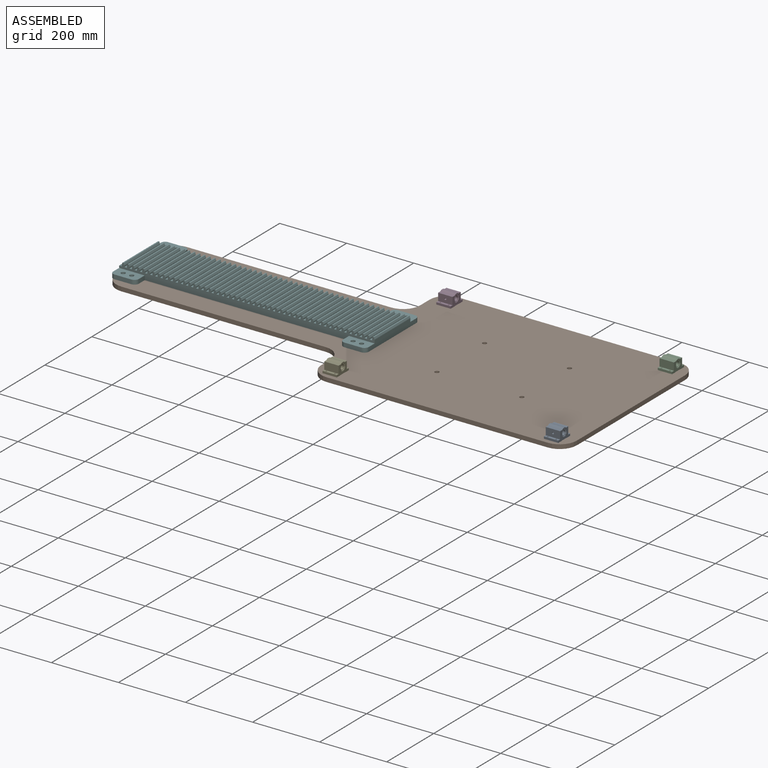
[diagram: assembled view]
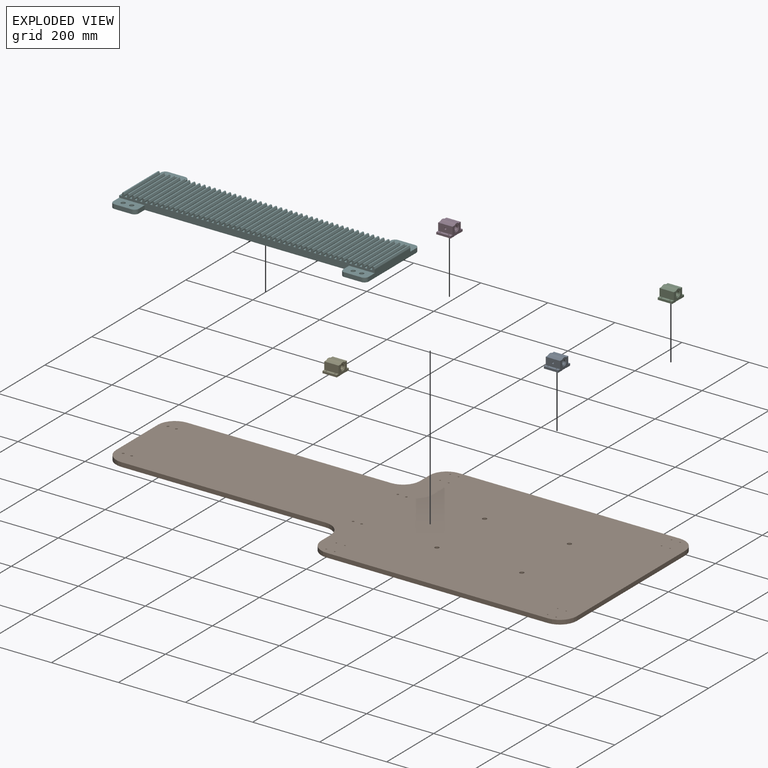
[diagram: exploded view]
GUIDED TOUR — MATED ASSEMBLY (Onshape document 529169e92f64153c733b8e30, AutoMate assembly 529169e92f64153c733b8e30_39c6d6c668530949ad70a255_f9c285f907397268ab07fada_default)

This assembly has 6 components, labeled P0..P5 below (a component is one placed occurrence of a part; the same part can appear more than once), held together by 5 mates. A mate is a constraint between two components; its type names the relative motion it leaves free:
  FASTENED — locks the two components together rigidly (no relative motion).
Axis/direction vectors are unit vectors and 'through' points are millimeter coordinates, both in the assembly's world frame.

MATES
  1. FASTENED "Fastened 2": P3 <-> P1, direction (0.000, 0.000, -1.000) through (443.78, 386.84, -166.92) mm
  2. FASTENED "Fastened 1": P2 <-> P1, direction (0.000, 0.000, -1.000) through (1104.18, 386.84, -166.92) mm
  3. FASTENED "Fastened 4": P0 <-> P1, direction (0.000, 0.000, -1.000) through (1078.78, -98.10, -166.92) mm
  4. FASTENED "Fastened 5": P5 <-> P1, direction (0.000, 0.000, -1.000) through (-305.52, 218.19, -166.92) mm
  5. FASTENED "Fastened 3": P4 <-> P1, direction (0.000, 0.000, -1.000) through (443.78, -140.96, -166.92) mm

ASSEMBLY ORDER
  1. P4 — the base component [order verified]
  2. P3 [order verified]
  3. P2 [order verified]
  4. P0 [order verified]
  5. P5 [order verified]
  6. P1 [order verified]
Order-tag legend:
  [order verified] — this step's position reverses a verified removal order: the component was checked to insert without passing through the ones already placed.

Of the 6 components, 2 carry the full construction recipe — the FeatureScript program that regenerates the part's solid from scratch; the rest are supplied as boundary geometry only.
Each toured component is shown spotlighted twice — in the assembled view, then in the exploded view, where a leader line traces a displaced component back to its assembled socket (saturated green if recipe-attached, orange if geometry-only; every other component desaturated gray) — followed by its recipe or geometry summary and the mates that hold it.
NOTE — document 2 of 3 of this assembly tour. The two overview renders and the header above are repeated from document 1; the component sections below continue where the previous document stopped.
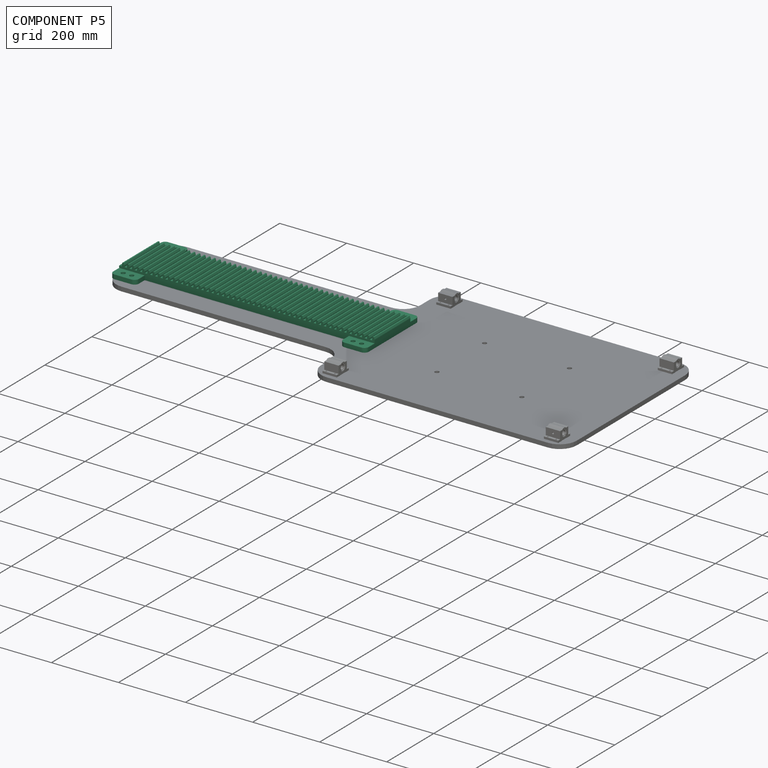
[diagram: component P5 — assembled]
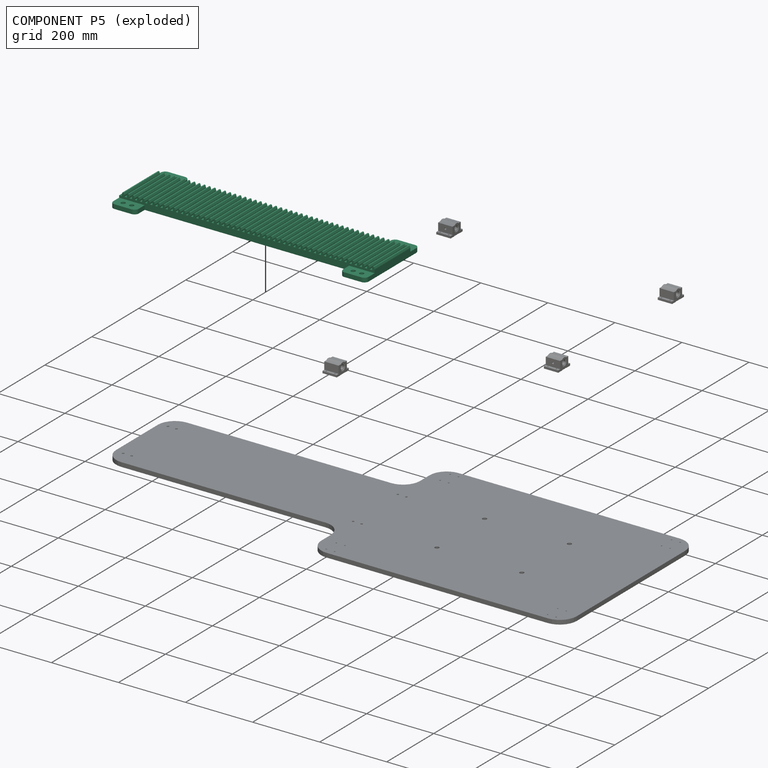
[diagram: component P5 — exploded]
COMPONENT P5 — recipe-attached (CADFS 00270996, mesh-verified: the recipe's output STEP matches this component's geometry to below the mesh-comparison resolution (tessellation chordal tolerance ~1.19 mm)).
Held by: FASTENED mate "Fastened 5" to P1.
Construction recipe (FeatureScript — the CAD program that rebuilds this solid; sketch coordinates are in the units given by the * unit suffixes, e.g. mm):

FeatureScript 1511;
import(path : "onshape/std/geometry.fs", version : "1511.0");
import(path : "onshape/std/common.fs", version : "1511.0");
const mm = millimeter;
const VERTEX = EntityType.VERTEX;
const EDGE = EntityType.EDGE;
const FACE = EntityType.FACE;
const BODY = EntityType.BODY;
function v(x, y){return vector(x, y);}
function OD(order){return orderDisambiguation(order);}
function OSD(set){return originalSetDisambiguation(set);}
function TD(topology){return topologyDisambiguation(topology);}
function TDD(query){return trueDependencyDisambiguation(query);}
function sQuery(a, b, c) {return sketchEntityQuery(a, b, c);}

annotation { "Feature Type Name" : "Feature", "Feature Type Description" : "" }
export const myFeature = defineFeature(function(context is Context, id is Id, definition is map)
    precondition{}
    {
        {
            var Q0;
            Q0=qCreatedBy(makeId("Top.planeOp"),FACE);
            var sketch = newSketch(context, id + "F0", { "sketchPlane" : qUnion([Q0])});
            skLineSegment(sketch, "E0", {"start": v(0, 12.7) * mm, "end": v(0, 215.9) * mm});
            skLineSegment(sketch, "E1", {"start": v(12.7, 228.6) * mm, "end": v(63.5, 228.6) * mm});
            skLineSegment(sketch, "E2", {"start": v(76.2, 215.9) * mm, "end": v(76.2, 190.5) * mm});
            skLineSegment(sketch, "E3", {"start": v(76.2, 190.5) * mm, "end": v(381, 190.5) * mm});
            skLineSegment(sketch, "E4", {"start": v(12.7, 0) * mm, "end": v(63.5, 0) * mm});
            skLineSegment(sketch, "E5", {"start": v(76.2, 12.7) * mm, "end": v(76.2, 38.1) * mm});
            skPoint(sketch, "E5.endSnap0", {"position": v(76.2, 209.55) * mm});
            skLineSegment(sketch, "E6", {"start": v(76.2, 38.1) * mm, "end": v(381, 38.1) * mm});
            skLineSegment(sketch, "E7", {"start": v(381, 190.5) * mm, "end": v(381, 38.1) * mm, "construction": true});
            skPoint(sketch, "E8.visualSharp", {"position": v(76.2, 228.6) * mm});
            skArc(sketch, "E8.filletArc", {"start": v(76.2, 215.9) * mm, "mid": v(72.48, 224.88) * mm, "end": v(63.5, 228.6) * mm});
            skPoint(sketch, "E9.visualSharp", {"position": v(0, 228.6) * mm});
            skArc(sketch, "E9.filletArc", {"start": v(12.7, 228.6) * mm, "mid": v(3.72, 224.88) * mm, "end": v(0, 215.9) * mm});
            skPoint(sketch, "E10.visualSharp", {"position": v(0, 0) * mm});
            skArc(sketch, "E10.filletArc", {"start": v(0, 12.7) * mm, "mid": v(3.72, 3.72) * mm, "end": v(12.7, 0) * mm});
            skPoint(sketch, "E11.visualSharp", {"position": v(76.2, 0) * mm});
            skArc(sketch, "E11.filletArc", {"start": v(63.5, 0) * mm, "mid": v(72.48, 3.72) * mm, "end": v(76.2, 12.7) * mm});
            skArc(sketch, "E12.MirrorCS", {"start": v(762, 12.7) * mm, "mid": v(758.28, 3.72) * mm, "end": v(749.3, 0) * mm});
            skArc(sketch, "E13.MirrorCS", {"start": v(749.3, 228.6) * mm, "mid": v(758.28, 224.88) * mm, "end": v(762, 215.9) * mm});
            skArc(sketch, "E14.MirrorCS", {"start": v(685.8, 215.9) * mm, "mid": v(689.52, 224.88) * mm, "end": v(698.5, 228.6) * mm});
            skArc(sketch, "E15.MirrorCS", {"start": v(698.5, 0) * mm, "mid": v(689.52, 3.72) * mm, "end": v(685.8, 12.7) * mm});
            skLineSegment(sketch, "E16.MirrorCS", {"start": v(685.8, 215.9) * mm, "end": v(685.8, 190.5) * mm});
            skPoint(sketch, "E17.MirrorP", {"position": v(685.8, 209.55) * mm});
            skPoint(sketch, "E18.MirrorP", {"position": v(685.8, 0) * mm});
            skLineSegment(sketch, "E19.MirrorCS", {"start": v(762, 12.7) * mm, "end": v(762, 215.9) * mm});
            skPoint(sketch, "E20.MirrorP", {"position": v(762, 228.6) * mm});
            skPoint(sketch, "E21.MirrorP", {"position": v(685.8, 228.6) * mm});
            skLineSegment(sketch, "E22.MirrorCS", {"start": v(749.3, 228.6) * mm, "end": v(698.5, 228.6) * mm});
            skPoint(sketch, "E23.MirrorP", {"position": v(762, 0) * mm});
            skLineSegment(sketch, "E24.MirrorCS", {"start": v(749.3, 0) * mm, "end": v(698.5, 0) * mm});
            skLineSegment(sketch, "E25.MirrorCS", {"start": v(685.8, 38.1) * mm, "end": v(381, 38.1) * mm});
            skLineSegment(sketch, "E26.MirrorCS", {"start": v(685.8, 190.5) * mm, "end": v(381, 190.5) * mm});
            skLineSegment(sketch, "E27.MirrorCS", {"start": v(685.8, 12.7) * mm, "end": v(685.8, 38.1) * mm});
            skPoint(sketch, "E28", {"position": v(25.4, 209.55) * mm});
            skPoint(sketch, "E29", {"position": v(50.8, 209.55) * mm});
            skLineSegment(sketch, "E30", {"start": v(0, 114.3) * mm, "end": v(762, 114.3) * mm, "construction": true});
            skPoint(sketch, "E31.MirrorP", {"position": v(50.8, 19.05) * mm});
            skPoint(sketch, "E32.MirrorP", {"position": v(25.4, 19.05) * mm});
            skPoint(sketch, "E33.MirrorP", {"position": v(736.6, 209.55) * mm});
            skPoint(sketch, "E34.MirrorP", {"position": v(711.2, 209.55) * mm});
            skPoint(sketch, "E35.MirrorP", {"position": v(711.2, 19.05) * mm});
            skPoint(sketch, "E36.MirrorP", {"position": v(736.6, 19.05) * mm});
            skSolve(sketch);
        }
        {
            var Q0;
            Q0 = qSketchRegion(id + "F0", true);
            extrude(context, id + "F1", {"entities" : qUnion([Q0]), "depth" : 12.7 * mm});
        }
        {
            var Q0;
            Q0=makeQuery(id+"F1.opExtrude","CAP_FACE",FACE,{"disambiguationData":[OSD([sQuery(id+"F0.wireOp",EDGE,"E0"),sQuery(id+"F0.wireOp",EDGE,"E1"),sQuery(id+"F0.wireOp",EDGE,"E2"),sQuery(id+"F0.wireOp",EDGE,"E3"),sQuery(id+"F0.wireOp",EDGE,"E4"),sQuery(id+"F0.wireOp",EDGE,"E5"),sQuery(id+"F0.wireOp",EDGE,"E6"),sQuery(id+"F0.wireOp",EDGE,"E8.filletArc"),sQuery(id+"F0.wireOp",EDGE,"E9.filletArc"),sQuery(id+"F0.wireOp",EDGE,"E10.filletArc"),sQuery(id+"F0.wireOp",EDGE,"E11.filletArc"),sQuery(id+"F0.wireOp",EDGE,"E12.MirrorCS"),sQuery(id+"F0.wireOp",EDGE,"E13.MirrorCS"),sQuery(id+"F0.wireOp",EDGE,"E14.MirrorCS"),sQuery(id+"F0.wireOp",EDGE,"E15.MirrorCS"),sQuery(id+"F0.wireOp",EDGE,"E16.MirrorCS"),sQuery(id+"F0.wireOp",EDGE,"E19.MirrorCS"),sQuery(id+"F0.wireOp",EDGE,"E22.MirrorCS"),sQuery(id+"F0.wireOp",EDGE,"E24.MirrorCS"),sQuery(id+"F0.wireOp",EDGE,"E25.MirrorCS"),sQuery(id+"F0.wireOp",EDGE,"E26.MirrorCS"),sQuery(id+"F0.wireOp",EDGE,"E27.MirrorCS")])],"isStart":false});
            var sketch = newSketch(context, id + "F2", { "sketchPlane" : qUnion([Q0])});
            skLineSegment(sketch, "E37", {"start": v(0, 190.5) * mm, "end": v(762, 190.5) * mm});
            skLineSegment(sketch, "E38", {"start": v(762, 190.5) * mm, "end": v(762, 38.1) * mm});
            skLineSegment(sketch, "E39", {"start": v(762, 38.1) * mm, "end": v(0, 38.1) * mm});
            skPoint(sketch, "E39.endSnap0", {"position": v(0, 114.3) * mm});
            skLineSegment(sketch, "E40", {"start": v(0, 38.1) * mm, "end": v(0, 190.5) * mm});
            skPoint(sketch, "E41", {"position": v(25.4, 209.55) * mm});
            skPoint(sketch, "E42", {"position": v(50.8, 209.55) * mm});
            skPoint(sketch, "E43.MirrorP", {"position": v(25.4, 19.05) * mm});
            skPoint(sketch, "E44.MirrorP", {"position": v(50.8, 19.05) * mm});
            skPoint(sketch, "E45.MirrorP", {"position": v(711.2, 209.55) * mm});
            skPoint(sketch, "E46.MirrorP", {"position": v(736.6, 209.55) * mm});
            skPoint(sketch, "E47.MirrorP", {"position": v(736.6, 19.05) * mm});
            skPoint(sketch, "E48.MirrorP", {"position": v(711.2, 19.05) * mm});
            skSolve(sketch);
        }
        {
            var Q0;
            Q0 = qSketchRegion(id + "F2", true);
            extrude(context, id + "F3", {"entities" : qUnion([Q0]), "operationType" : NewBodyOperationType.ADD, "depth" : 6.35 * mm});
        }
        {
            var Q0;
            Q0=sQuery(id+"F2.wireOp",VERTEX,"E46.MirrorP");
            var Q1;
            Q1=sQuery(id+"F2.wireOp",VERTEX,"E45.MirrorP");
            var Q2;
            Q2=sQuery(id+"F2.wireOp",VERTEX,"E47.MirrorP");
            var Q3;
            Q3=sQuery(id+"F2.wireOp",VERTEX,"E48.MirrorP");
            var Q4;
            Q4=sQuery(id+"F2.wireOp",VERTEX,"E42");
            var Q5;
            Q5=sQuery(id+"F2.wireOp",VERTEX,"E41");
            var Q6;
            Q6=sQuery(id+"F2.wireOp",VERTEX,"E44.MirrorP");
            var Q7;
            Q7=sQuery(id+"F2.wireOp",VERTEX,"E43.MirrorP");
            var Q8;
            Q8=makeQuery(id+"F1.opExtrude","SWEPT_BODY",BODY,{"disambiguationData":[OSD([sQuery(id+"F0.wireOp",EDGE,"E0"),sQuery(id+"F0.wireOp",EDGE,"E1"),sQuery(id+"F0.wireOp",EDGE,"E2"),sQuery(id+"F0.wireOp",EDGE,"E3"),sQuery(id+"F0.wireOp",EDGE,"E4"),sQuery(id+"F0.wireOp",EDGE,"E5"),sQuery(id+"F0.wireOp",EDGE,"E6"),sQuery(id+"F0.wireOp",EDGE,"E8.filletArc"),sQuery(id+"F0.wireOp",EDGE,"E9.filletArc"),sQuery(id+"F0.wireOp",EDGE,"E10.filletArc"),sQuery(id+"F0.wireOp",EDGE,"E11.filletArc"),sQuery(id+"F0.wireOp",EDGE,"E12.MirrorCS"),sQuery(id+"F0.wireOp",EDGE,"E13.MirrorCS"),sQuery(id+"F0.wireOp",EDGE,"E14.MirrorCS"),sQuery(id+"F0.wireOp",EDGE,"E15.MirrorCS"),sQuery(id+"F0.wireOp",EDGE,"E16.MirrorCS"),sQuery(id+"F0.wireOp",EDGE,"E19.MirrorCS"),sQuery(id+"F0.wireOp",EDGE,"E22.MirrorCS"),sQuery(id+"F0.wireOp",EDGE,"E24.MirrorCS"),sQuery(id+"F0.wireOp",EDGE,"E25.MirrorCS"),sQuery(id+"F0.wireOp",EDGE,"E26.MirrorCS"),sQuery(id+"F0.wireOp",EDGE,"E27.MirrorCS")])]});
            hole(context, id + "F4", {"style" : HoleStyle.C_BORE, "endStyle" : HoleEndStyle.THROUGH, "holeDiameter" : 6.35 * mm, "cBoreDiameter" : 12.7 * mm, "cBoreDepth" : 6.35 * mm, "tappedDepth" : 12.7 * mm, "tapClearance" : 3, "locations" : qUnion([Q0, Q1, Q2, Q3, Q4, Q5, Q6, Q7]), "scope" : qUnion([Q8])});
        }
        {
            var Q0;
            Q0=makeQuery(id+"F3.opExtrude","CAP_FACE",FACE,{"disambiguationData":[OSD([sQuery(id+"F2.wireOp",EDGE,"E37"),sQuery(id+"F2.wireOp",EDGE,"E38"),sQuery(id+"F2.wireOp",EDGE,"E39"),sQuery(id+"F2.wireOp",EDGE,"E40")])],"isStart":false});
            var sketch = newSketch(context, id + "F5", { "sketchPlane" : qUnion([Q0])});
            skLineSegment(sketch, "E49", {"start": v(7.62, 190.5) * mm, "end": v(7.62, 38.1) * mm});
            skLineSegment(sketch, "E50.0", {"start": v(15.24, 190.5) * mm, "end": v(15.24, 38.1) * mm});
            skLineSegment(sketch, "E51", {"start": v(15.24, 190.5) * mm, "end": v(7.62, 190.5) * mm});
            skLineSegment(sketch, "E52.0", {"start": v(22.86, 190.5) * mm, "end": v(22.86, 38.1) * mm});
            skLineSegment(sketch, "E53.0", {"start": v(30.48, 190.5) * mm, "end": v(30.48, 38.1) * mm});
            skLineSegment(sketch, "E54", {"start": v(22.86, 190.5) * mm, "end": v(30.48, 190.5) * mm});
            skLineSegment(sketch, "E55", {"start": v(22.86, 38.1) * mm, "end": v(30.48, 38.1) * mm});
            skLineSegment(sketch, "E56", {"start": v(7.62, 38.1) * mm, "end": v(15.24, 38.1) * mm});
            skLineSegment(sketch, "E57.1.0.0", {"start": v(45.72, 190.5) * mm, "end": v(38.1, 190.5) * mm});
            skLineSegment(sketch, "E57.1.0.1", {"start": v(38.1, 190.5) * mm, "end": v(38.1, 38.1) * mm});
            skLineSegment(sketch, "E57.1.0.2", {"start": v(45.72, 190.5) * mm, "end": v(45.72, 38.1) * mm});
            skLineSegment(sketch, "E57.1.0.3", {"start": v(53.34, 190.5) * mm, "end": v(53.34, 38.1) * mm});
            skLineSegment(sketch, "E57.1.0.4", {"start": v(53.34, 190.5) * mm, "end": v(60.96, 190.5) * mm});
            skLineSegment(sketch, "E57.1.0.5", {"start": v(60.96, 190.5) * mm, "end": v(60.96, 38.1) * mm});
            skLineSegment(sketch, "E57.1.0.6", {"start": v(53.34, 38.1) * mm, "end": v(60.96, 38.1) * mm});
            skLineSegment(sketch, "E57.1.0.7", {"start": v(38.1, 38.1) * mm, "end": v(45.72, 38.1) * mm});
            skLineSegment(sketch, "E57.2.0.0", {"start": v(76.2, 190.5) * mm, "end": v(68.58, 190.5) * mm});
            skLineSegment(sketch, "E57.2.0.1", {"start": v(68.58, 190.5) * mm, "end": v(68.58, 38.1) * mm});
            skLineSegment(sketch, "E57.2.0.2", {"start": v(76.2, 190.5) * mm, "end": v(76.2, 38.1) * mm});
            skLineSegment(sketch, "E57.2.0.3", {"start": v(83.82, 190.5) * mm, "end": v(83.82, 38.1) * mm});
            skLineSegment(sketch, "E57.2.0.4", {"start": v(83.82, 190.5) * mm, "end": v(91.44, 190.5) * mm});
            skLineSegment(sketch, "E57.2.0.5", {"start": v(91.44, 190.5) * mm, "end": v(91.44, 38.1) * mm});
            skLineSegment(sketch, "E57.2.0.6", {"start": v(83.82, 38.1) * mm, "end": v(91.44, 38.1) * mm});
            skLineSegment(sketch, "E57.2.0.7", {"start": v(68.58, 38.1) * mm, "end": v(76.2, 38.1) * mm});
            skLineSegment(sketch, "E57.3.0.0", {"start": v(106.68, 190.5) * mm, "end": v(99.06, 190.5) * mm});
            skLineSegment(sketch, "E57.3.0.1", {"start": v(99.06, 190.5) * mm, "end": v(99.06, 38.1) * mm});
            skLineSegment(sketch, "E57.3.0.2", {"start": v(106.68, 190.5) * mm, "end": v(106.68, 38.1) * mm});
            skLineSegment(sketch, "E57.3.0.3", {"start": v(114.3, 190.5) * mm, "end": v(114.3, 38.1) * mm});
            skLineSegment(sketch, "E57.3.0.4", {"start": v(114.3, 190.5) * mm, "end": v(121.92, 190.5) * mm});
            skLineSegment(sketch, "E57.3.0.5", {"start": v(121.92, 190.5) * mm, "end": v(121.92, 38.1) * mm});
            skLineSegment(sketch, "E57.3.0.6", {"start": v(114.3, 38.1) * mm, "end": v(121.92, 38.1) * mm});
            skLineSegment(sketch, "E57.3.0.7", {"start": v(99.06, 38.1) * mm, "end": v(106.68, 38.1) * mm});
            skLineSegment(sketch, "E57.4.0.0", {"start": v(137.16, 190.5) * mm, "end": v(129.54, 190.5) * mm});
            skLineSegment(sketch, "E57.4.0.1", {"start": v(129.54, 190.5) * mm, "end": v(129.54, 38.1) * mm});
            skLineSegment(sketch, "E57.4.0.2", {"start": v(137.16, 190.5) * mm, "end": v(137.16, 38.1) * mm});
            skLineSegment(sketch, "E57.4.0.3", {"start": v(144.78, 190.5) * mm, "end": v(144.78, 38.1) * mm});
            skLineSegment(sketch, "E57.4.0.4", {"start": v(144.78, 190.5) * mm, "end": v(152.4, 190.5) * mm});
            skLineSegment(sketch, "E57.4.0.5", {"start": v(152.4, 190.5) * mm, "end": v(152.4, 38.1) * mm});
            skLineSegment(sketch, "E57.4.0.6", {"start": v(144.78, 38.1) * mm, "end": v(152.4, 38.1) * mm});
            skLineSegment(sketch, "E57.4.0.7", {"start": v(129.54, 38.1) * mm, "end": v(137.16, 38.1) * mm});
            skLineSegment(sketch, "E57.5.0.0", {"start": v(167.64, 190.5) * mm, "end": v(160.02, 190.5) * mm});
            skLineSegment(sketch, "E57.5.0.1", {"start": v(160.02, 190.5) * mm, "end": v(160.02, 38.1) * mm});
            skLineSegment(sketch, "E57.5.0.2", {"start": v(167.64, 190.5) * mm, "end": v(167.64, 38.1) * mm});
            skLineSegment(sketch, "E57.5.0.3", {"start": v(175.26, 190.5) * mm, "end": v(175.26, 38.1) * mm});
            skLineSegment(sketch, "E57.5.0.4", {"start": v(175.26, 190.5) * mm, "end": v(182.88, 190.5) * mm});
            skLineSegment(sketch, "E57.5.0.5", {"start": v(182.88, 190.5) * mm, "end": v(182.88, 38.1) * mm});
            skLineSegment(sketch, "E57.5.0.6", {"start": v(175.26, 38.1) * mm, "end": v(182.88, 38.1) * mm});
            skLineSegment(sketch, "E57.5.0.7", {"start": v(160.02, 38.1) * mm, "end": v(167.64, 38.1) * mm});
            skLineSegment(sketch, "E57.6.0.0", {"start": v(198.12, 190.5) * mm, "end": v(190.5, 190.5) * mm});
            skLineSegment(sketch, "E57.6.0.1", {"start": v(190.5, 190.5) * mm, "end": v(190.5, 38.1) * mm});
            skLineSegment(sketch, "E57.6.0.2", {"start": v(198.12, 190.5) * mm, "end": v(198.12, 38.1) * mm});
            skLineSegment(sketch, "E57.6.0.3", {"start": v(205.74, 190.5) * mm, "end": v(205.74, 38.1) * mm});
            skLineSegment(sketch, "E57.6.0.4", {"start": v(205.74, 190.5) * mm, "end": v(213.36, 190.5) * mm});
            skLineSegment(sketch, "E57.6.0.5", {"start": v(213.36, 190.5) * mm, "end": v(213.36, 38.1) * mm});
            skLineSegment(sketch, "E57.6.0.6", {"start": v(205.74, 38.1) * mm, "end": v(213.36, 38.1) * mm});
            skLineSegment(sketch, "E57.6.0.7", {"start": v(190.5, 38.1) * mm, "end": v(198.12, 38.1) * mm});
            skLineSegment(sketch, "E57.7.0.0", {"start": v(228.6, 190.5) * mm, "end": v(220.98, 190.5) * mm});
            skLineSegment(sketch, "E57.7.0.1", {"start": v(220.98, 190.5) * mm, "end": v(220.98, 38.1) * mm});
            skLineSegment(sketch, "E57.7.0.2", {"start": v(228.6, 190.5) * mm, "end": v(228.6, 38.1) * mm});
            skLineSegment(sketch, "E57.7.0.3", {"start": v(236.22, 190.5) * mm, "end": v(236.22, 38.1) * mm});
            skLineSegment(sketch, "E57.7.0.4", {"start": v(236.22, 190.5) * mm, "end": v(243.84, 190.5) * mm});
            skLineSegment(sketch, "E57.7.0.5", {"start": v(243.84, 190.5) * mm, "end": v(243.84, 38.1) * mm});
            skLineSegment(sketch, "E57.7.0.6", {"start": v(236.22, 38.1) * mm, "end": v(243.84, 38.1) * mm});
            skLineSegment(sketch, "E57.7.0.7", {"start": v(220.98, 38.1) * mm, "end": v(228.6, 38.1) * mm});
            skLineSegment(sketch, "E57.8.0.0", {"start": v(259.08, 190.5) * mm, "end": v(251.46, 190.5) * mm});
            skLineSegment(sketch, "E57.8.0.1", {"start": v(251.46, 190.5) * mm, "end": v(251.46, 38.1) * mm});
            skLineSegment(sketch, "E57.8.0.2", {"start": v(259.08, 190.5) * mm, "end": v(259.08, 38.1) * mm});
            skLineSegment(sketch, "E57.8.0.3", {"start": v(266.7, 190.5) * mm, "end": v(266.7, 38.1) * mm});
            skLineSegment(sketch, "E57.8.0.4", {"start": v(266.7, 190.5) * mm, "end": v(274.32, 190.5) * mm});
            skLineSegment(sketch, "E57.8.0.5", {"start": v(274.32, 190.5) * mm, "end": v(274.32, 38.1) * mm});
            skLineSegment(sketch, "E57.8.0.6", {"start": v(266.7, 38.1) * mm, "end": v(274.32, 38.1) * mm});
            skLineSegment(sketch, "E57.8.0.7", {"start": v(251.46, 38.1) * mm, "end": v(259.08, 38.1) * mm});
            skLineSegment(sketch, "E57.9.0.0", {"start": v(289.56, 190.5) * mm, "end": v(281.94, 190.5) * mm});
            skLineSegment(sketch, "E57.9.0.1", {"start": v(281.94, 190.5) * mm, "end": v(281.94, 38.1) * mm});
            skLineSegment(sketch, "E57.9.0.2", {"start": v(289.56, 190.5) * mm, "end": v(289.56, 38.1) * mm});
            skLineSegment(sketch, "E57.9.0.3", {"start": v(297.18, 190.5) * mm, "end": v(297.18, 38.1) * mm});
            skLineSegment(sketch, "E57.9.0.4", {"start": v(297.18, 190.5) * mm, "end": v(304.8, 190.5) * mm});
            skLineSegment(sketch, "E57.9.0.5", {"start": v(304.8, 190.5) * mm, "end": v(304.8, 38.1) * mm});
            skLineSegment(sketch, "E57.9.0.6", {"start": v(297.18, 38.1) * mm, "end": v(304.8, 38.1) * mm});
            skLineSegment(sketch, "E57.9.0.7", {"start": v(281.94, 38.1) * mm, "end": v(289.56, 38.1) * mm});
            skLineSegment(sketch, "E57.10.0.0", {"start": v(320.04, 190.5) * mm, "end": v(312.42, 190.5) * mm});
            skLineSegment(sketch, "E57.10.0.1", {"start": v(312.42, 190.5) * mm, "end": v(312.42, 38.1) * mm});
            skLineSegment(sketch, "E57.10.0.2", {"start": v(320.04, 190.5) * mm, "end": v(320.04, 38.1) * mm});
            skLineSegment(sketch, "E57.10.0.3", {"start": v(327.66, 190.5) * mm, "end": v(327.66, 38.1) * mm});
            skLineSegment(sketch, "E57.10.0.4", {"start": v(327.66, 190.5) * mm, "end": v(335.28, 190.5) * mm});
            skLineSegment(sketch, "E57.10.0.5", {"start": v(335.28, 190.5) * mm, "end": v(335.28, 38.1) * mm});
            skLineSegment(sketch, "E57.10.0.6", {"start": v(327.66, 38.1) * mm, "end": v(335.28, 38.1) * mm});
            skLineSegment(sketch, "E57.10.0.7", {"start": v(312.42, 38.1) * mm, "end": v(320.04, 38.1) * mm});
            skLineSegment(sketch, "E57.11.0.0", {"start": v(350.52, 190.5) * mm, "end": v(342.9, 190.5) * mm});
            skLineSegment(sketch, "E57.11.0.1", {"start": v(342.9, 190.5) * mm, "end": v(342.9, 38.1) * mm});
            skLineSegment(sketch, "E57.11.0.2", {"start": v(350.52, 190.5) * mm, "end": v(350.52, 38.1) * mm});
            skLineSegment(sketch, "E57.11.0.3", {"start": v(358.14, 190.5) * mm, "end": v(358.14, 38.1) * mm});
            skLineSegment(sketch, "E57.11.0.4", {"start": v(358.14, 190.5) * mm, "end": v(365.76, 190.5) * mm});
            skLineSegment(sketch, "E57.11.0.5", {"start": v(365.76, 190.5) * mm, "end": v(365.76, 38.1) * mm});
            skLineSegment(sketch, "E57.11.0.6", {"start": v(358.14, 38.1) * mm, "end": v(365.76, 38.1) * mm});
            skLineSegment(sketch, "E57.11.0.7", {"start": v(342.9, 38.1) * mm, "end": v(350.52, 38.1) * mm});
            skLineSegment(sketch, "E57.12.0.0", {"start": v(381, 190.5) * mm, "end": v(373.38, 190.5) * mm});
            skLineSegment(sketch, "E57.12.0.1", {"start": v(373.38, 190.5) * mm, "end": v(373.38, 38.1) * mm});
            skLineSegment(sketch, "E57.12.0.2", {"start": v(381, 190.5) * mm, "end": v(381, 38.1) * mm});
            skLineSegment(sketch, "E57.12.0.3", {"start": v(388.62, 190.5) * mm, "end": v(388.62, 38.1) * mm});
            skLineSegment(sketch, "E57.12.0.4", {"start": v(388.62, 190.5) * mm, "end": v(396.24, 190.5) * mm});
            skLineSegment(sketch, "E57.12.0.5", {"start": v(396.24, 190.5) * mm, "end": v(396.24, 38.1) * mm});
            skLineSegment(sketch, "E57.12.0.6", {"start": v(388.62, 38.1) * mm, "end": v(396.24, 38.1) * mm});
            skLineSegment(sketch, "E57.12.0.7", {"start": v(373.38, 38.1) * mm, "end": v(381, 38.1) * mm});
            skLineSegment(sketch, "E57.13.0.0", {"start": v(411.48, 190.5) * mm, "end": v(403.86, 190.5) * mm});
            skLineSegment(sketch, "E57.13.0.1", {"start": v(403.86, 190.5) * mm, "end": v(403.86, 38.1) * mm});
            skLineSegment(sketch, "E57.13.0.2", {"start": v(411.48, 190.5) * mm, "end": v(411.48, 38.1) * mm});
            skLineSegment(sketch, "E57.13.0.3", {"start": v(419.1, 190.5) * mm, "end": v(419.1, 38.1) * mm});
            skLineSegment(sketch, "E57.13.0.4", {"start": v(419.1, 190.5) * mm, "end": v(426.72, 190.5) * mm});
            skLineSegment(sketch, "E57.13.0.5", {"start": v(426.72, 190.5) * mm, "end": v(426.72, 38.1) * mm});
            skLineSegment(sketch, "E57.13.0.6", {"start": v(419.1, 38.1) * mm, "end": v(426.72, 38.1) * mm});
            skLineSegment(sketch, "E57.13.0.7", {"start": v(403.86, 38.1) * mm, "end": v(411.48, 38.1) * mm});
            skLineSegment(sketch, "E57.14.0.0", {"start": v(441.96, 190.5) * mm, "end": v(434.34, 190.5) * mm});
            skLineSegment(sketch, "E57.14.0.1", {"start": v(434.34, 190.5) * mm, "end": v(434.34, 38.1) * mm});
            skLineSegment(sketch, "E57.14.0.2", {"start": v(441.96, 190.5) * mm, "end": v(441.96, 38.1) * mm});
            skLineSegment(sketch, "E57.14.0.3", {"start": v(449.58, 190.5) * mm, "end": v(449.58, 38.1) * mm});
            skLineSegment(sketch, "E57.14.0.4", {"start": v(449.58, 190.5) * mm, "end": v(457.2, 190.5) * mm});
            skLineSegment(sketch, "E57.14.0.5", {"start": v(457.2, 190.5) * mm, "end": v(457.2, 38.1) * mm});
            skLineSegment(sketch, "E57.14.0.6", {"start": v(449.58, 38.1) * mm, "end": v(457.2, 38.1) * mm});
            skLineSegment(sketch, "E57.14.0.7", {"start": v(434.34, 38.1) * mm, "end": v(441.96, 38.1) * mm});
            skLineSegment(sketch, "E57.15.0.0", {"start": v(472.44, 190.5) * mm, "end": v(464.82, 190.5) * mm});
            skLineSegment(sketch, "E57.15.0.1", {"start": v(464.82, 190.5) * mm, "end": v(464.82, 38.1) * mm});
            skLineSegment(sketch, "E57.15.0.2", {"start": v(472.44, 190.5) * mm, "end": v(472.44, 38.1) * mm});
            skLineSegment(sketch, "E57.15.0.3", {"start": v(480.06, 190.5) * mm, "end": v(480.06, 38.1) * mm});
            skLineSegment(sketch, "E57.15.0.4", {"start": v(480.06, 190.5) * mm, "end": v(487.68, 190.5) * mm});
            skLineSegment(sketch, "E57.15.0.5", {"start": v(487.68, 190.5) * mm, "end": v(487.68, 38.1) * mm});
            skLineSegment(sketch, "E57.15.0.6", {"start": v(480.06, 38.1) * mm, "end": v(487.68, 38.1) * mm});
            skLineSegment(sketch, "E57.15.0.7", {"start": v(464.82, 38.1) * mm, "end": v(472.44, 38.1) * mm});
            skLineSegment(sketch, "E57.16.0.0", {"start": v(502.92, 190.5) * mm, "end": v(495.3, 190.5) * mm});
            skLineSegment(sketch, "E57.16.0.1", {"start": v(495.3, 190.5) * mm, "end": v(495.3, 38.1) * mm});
            skLineSegment(sketch, "E57.16.0.2", {"start": v(502.92, 190.5) * mm, "end": v(502.92, 38.1) * mm});
            skLineSegment(sketch, "E57.16.0.3", {"start": v(510.54, 190.5) * mm, "end": v(510.54, 38.1) * mm});
            skLineSegment(sketch, "E57.16.0.4", {"start": v(510.54, 190.5) * mm, "end": v(518.16, 190.5) * mm});
            skLineSegment(sketch, "E57.16.0.5", {"start": v(518.16, 190.5) * mm, "end": v(518.16, 38.1) * mm});
            skLineSegment(sketch, "E57.16.0.6", {"start": v(510.54, 38.1) * mm, "end": v(518.16, 38.1) * mm});
            skLineSegment(sketch, "E57.16.0.7", {"start": v(495.3, 38.1) * mm, "end": v(502.92, 38.1) * mm});
            skLineSegment(sketch, "E57.17.0.0", {"start": v(533.4, 190.5) * mm, "end": v(525.78, 190.5) * mm});
            skLineSegment(sketch, "E57.17.0.1", {"start": v(525.78, 190.5) * mm, "end": v(525.78, 38.1) * mm});
            skLineSegment(sketch, "E57.17.0.2", {"start": v(533.4, 190.5) * mm, "end": v(533.4, 38.1) * mm});
            skLineSegment(sketch, "E57.17.0.3", {"start": v(541.02, 190.5) * mm, "end": v(541.02, 38.1) * mm});
            skLineSegment(sketch, "E57.17.0.4", {"start": v(541.02, 190.5) * mm, "end": v(548.64, 190.5) * mm});
            skLineSegment(sketch, "E57.17.0.5", {"start": v(548.64, 190.5) * mm, "end": v(548.64, 38.1) * mm});
            skLineSegment(sketch, "E57.17.0.6", {"start": v(541.02, 38.1) * mm, "end": v(548.64, 38.1) * mm});
            skLineSegment(sketch, "E57.17.0.7", {"start": v(525.78, 38.1) * mm, "end": v(533.4, 38.1) * mm});
            skLineSegment(sketch, "E57.18.0.0", {"start": v(563.88, 190.5) * mm, "end": v(556.26, 190.5) * mm});
            skLineSegment(sketch, "E57.18.0.1", {"start": v(556.26, 190.5) * mm, "end": v(556.26, 38.1) * mm});
            skLineSegment(sketch, "E57.18.0.2", {"start": v(563.88, 190.5) * mm, "end": v(563.88, 38.1) * mm});
            skLineSegment(sketch, "E57.18.0.3", {"start": v(571.5, 190.5) * mm, "end": v(571.5, 38.1) * mm});
            skLineSegment(sketch, "E57.18.0.4", {"start": v(571.5, 190.5) * mm, "end": v(579.12, 190.5) * mm});
            skLineSegment(sketch, "E57.18.0.5", {"start": v(579.12, 190.5) * mm, "end": v(579.12, 38.1) * mm});
            skLineSegment(sketch, "E57.18.0.6", {"start": v(571.5, 38.1) * mm, "end": v(579.12, 38.1) * mm});
            skLineSegment(sketch, "E57.18.0.7", {"start": v(556.26, 38.1) * mm, "end": v(563.88, 38.1) * mm});
            skLineSegment(sketch, "E57.19.0.0", {"start": v(594.36, 190.5) * mm, "end": v(586.74, 190.5) * mm});
            skLineSegment(sketch, "E57.19.0.1", {"start": v(586.74, 190.5) * mm, "end": v(586.74, 38.1) * mm});
            skLineSegment(sketch, "E57.19.0.2", {"start": v(594.36, 190.5) * mm, "end": v(594.36, 38.1) * mm});
            skLineSegment(sketch, "E57.19.0.3", {"start": v(601.98, 190.5) * mm, "end": v(601.98, 38.1) * mm});
            skLineSegment(sketch, "E57.19.0.4", {"start": v(601.98, 190.5) * mm, "end": v(609.6, 190.5) * mm});
            skLineSegment(sketch, "E57.19.0.5", {"start": v(609.6, 190.5) * mm, "end": v(609.6, 38.1) * mm});
            skLineSegment(sketch, "E57.19.0.6", {"start": v(601.98, 38.1) * mm, "end": v(609.6, 38.1) * mm});
            skLineSegment(sketch, "E57.19.0.7", {"start": v(586.74, 38.1) * mm, "end": v(594.36, 38.1) * mm});
            skLineSegment(sketch, "E57.20.0.0", {"start": v(624.84, 190.5) * mm, "end": v(617.22, 190.5) * mm});
            skLineSegment(sketch, "E57.20.0.1", {"start": v(617.22, 190.5) * mm, "end": v(617.22, 38.1) * mm});
            skLineSegment(sketch, "E57.20.0.2", {"start": v(624.84, 190.5) * mm, "end": v(624.84, 38.1) * mm});
            skLineSegment(sketch, "E57.20.0.3", {"start": v(632.46, 190.5) * mm, "end": v(632.46, 38.1) * mm});
            skLineSegment(sketch, "E57.20.0.4", {"start": v(632.46, 190.5) * mm, "end": v(640.08, 190.5) * mm});
            skLineSegment(sketch, "E57.20.0.5", {"start": v(640.08, 190.5) * mm, "end": v(640.08, 38.1) * mm});
            skLineSegment(sketch, "E57.20.0.6", {"start": v(632.46, 38.1) * mm, "end": v(640.08, 38.1) * mm});
            skLineSegment(sketch, "E57.20.0.7", {"start": v(617.22, 38.1) * mm, "end": v(624.84, 38.1) * mm});
            skLineSegment(sketch, "E57.21.0.0", {"start": v(655.32, 190.5) * mm, "end": v(647.7, 190.5) * mm});
            skLineSegment(sketch, "E57.21.0.1", {"start": v(647.7, 190.5) * mm, "end": v(647.7, 38.1) * mm});
            skLineSegment(sketch, "E57.21.0.2", {"start": v(655.32, 190.5) * mm, "end": v(655.32, 38.1) * mm});
            skLineSegment(sketch, "E57.21.0.3", {"start": v(662.94, 190.5) * mm, "end": v(662.94, 38.1) * mm});
            skLineSegment(sketch, "E57.21.0.4", {"start": v(662.94, 190.5) * mm, "end": v(670.56, 190.5) * mm});
            skLineSegment(sketch, "E57.21.0.5", {"start": v(670.56, 190.5) * mm, "end": v(670.56, 38.1) * mm});
            skLineSegment(sketch, "E57.21.0.6", {"start": v(662.94, 38.1) * mm, "end": v(670.56, 38.1) * mm});
            skLineSegment(sketch, "E57.21.0.7", {"start": v(647.7, 38.1) * mm, "end": v(655.32, 38.1) * mm});
            skLineSegment(sketch, "E57.22.0.0", {"start": v(685.8, 190.5) * mm, "end": v(678.18, 190.5) * mm});
            skLineSegment(sketch, "E57.22.0.1", {"start": v(678.18, 190.5) * mm, "end": v(678.18, 38.1) * mm});
            skLineSegment(sketch, "E57.22.0.2", {"start": v(685.8, 190.5) * mm, "end": v(685.8, 38.1) * mm});
            skLineSegment(sketch, "E57.22.0.3", {"start": v(693.42, 190.5) * mm, "end": v(693.42, 38.1) * mm});
            skLineSegment(sketch, "E57.22.0.4", {"start": v(693.42, 190.5) * mm, "end": v(701.04, 190.5) * mm});
            skLineSegment(sketch, "E57.22.0.5", {"start": v(701.04, 190.5) * mm, "end": v(701.04, 38.1) * mm});
            skLineSegment(sketch, "E57.22.0.6", {"start": v(693.42, 38.1) * mm, "end": v(701.04, 38.1) * mm});
            skLineSegment(sketch, "E57.22.0.7", {"start": v(678.18, 38.1) * mm, "end": v(685.8, 38.1) * mm});
            skLineSegment(sketch, "E57.23.0.0", {"start": v(716.28, 190.5) * mm, "end": v(708.66, 190.5) * mm});
            skLineSegment(sketch, "E57.23.0.1", {"start": v(708.66, 190.5) * mm, "end": v(708.66, 38.1) * mm});
            skLineSegment(sketch, "E57.23.0.2", {"start": v(716.28, 190.5) * mm, "end": v(716.28, 38.1) * mm});
            skLineSegment(sketch, "E57.23.0.3", {"start": v(723.9, 190.5) * mm, "end": v(723.9, 38.1) * mm});
            skLineSegment(sketch, "E57.23.0.4", {"start": v(723.9, 190.5) * mm, "end": v(731.52, 190.5) * mm});
            skLineSegment(sketch, "E57.23.0.5", {"start": v(731.52, 190.5) * mm, "end": v(731.52, 38.1) * mm});
            skLineSegment(sketch, "E57.23.0.6", {"start": v(723.9, 38.1) * mm, "end": v(731.52, 38.1) * mm});
            skLineSegment(sketch, "E57.23.0.7", {"start": v(708.66, 38.1) * mm, "end": v(716.28, 38.1) * mm});
            skLineSegment(sketch, "E57.24.0.0", {"start": v(746.76, 190.5) * mm, "end": v(739.14, 190.5) * mm});
            skLineSegment(sketch, "E57.24.0.1", {"start": v(739.14, 190.5) * mm, "end": v(739.14, 38.1) * mm});
            skLineSegment(sketch, "E57.24.0.2", {"start": v(746.76, 190.5) * mm, "end": v(746.76, 38.1) * mm});
            skLineSegment(sketch, "E57.24.0.3", {"start": v(754.38, 190.5) * mm, "end": v(754.38, 38.1) * mm});
            skLineSegment(sketch, "E57.24.0.4", {"start": v(754.38, 190.5) * mm, "end": v(762, 190.5) * mm});
            skLineSegment(sketch, "E57.24.0.5", {"start": v(762, 190.5) * mm, "end": v(762, 38.1) * mm});
            skLineSegment(sketch, "E57.24.0.6", {"start": v(754.38, 38.1) * mm, "end": v(762, 38.1) * mm});
            skLineSegment(sketch, "E57.24.0.7", {"start": v(739.14, 38.1) * mm, "end": v(746.76, 38.1) * mm});
            skLineSegment(sketch, "E57.direction1", {"start": v(7.62, 190.5) * mm, "end": v(38.1, 190.5) * mm, "construction": true});
            skSolve(sketch);
        }
        {
            var Q0;
            Q0=makeQuery(id+"Fu1y5GcWRBi5nUe_1.boolean.opBoolean","MERGE",FACE,{"derivedFrom":[makeQuery(id+"F3.boolean.opBoolean","MERGE",FACE,{"derivedFrom":[makeQuery(id+"F1.opExtrude","SWEPT_FACE",FACE,{"disambiguationData":[OSD([sQuery(id+"F0.wireOp",EDGE,"E6"),sQuery(id+"F0.wireOp",EDGE,"E25.MirrorCS")])]}),makeQuery(id+"F3.opExtrude","SWEPT_FACE",FACE,{"disambiguationData":[OSD([sQuery(id+"F2.wireOp",EDGE,"E39")])]})]}),makeQuery(id+"Fu1y5GcWRBi5nUe_1.opExtrude","SWEPT_FACE",FACE,{"disambiguationData":[OSD([sQuery(id+"F5.wireOp",EDGE,"E55")])]}),makeQuery(id+"Fu1y5GcWRBi5nUe_1.opExtrude","SWEPT_FACE",FACE,{"disambiguationData":[OSD([sQuery(id+"F5.wireOp",EDGE,"E56")])]}),makeQuery(id+"Fu1y5GcWRBi5nUe_1.opExtrude","SWEPT_FACE",FACE,{"disambiguationData":[OSD([sQuery(id+"F5.wireOp",EDGE,"E57.1.0.6")])]}),makeQuery(id+"Fu1y5GcWRBi5nUe_1.opExtrude","SWEPT_FACE",FACE,{"disambiguationData":[OSD([sQuery(id+"F5.wireOp",EDGE,"E57.1.0.7")])]}),makeQuery(id+"Fu1y5GcWRBi5nUe_1.opExtrude","SWEPT_FACE",FACE,{"disambiguationData":[OSD([sQuery(id+"F5.wireOp",EDGE,"E57.2.0.6")])]}),makeQuery(id+"Fu1y5GcWRBi5nUe_1.opExtrude","SWEPT_FACE",FACE,{"disambiguationData":[OSD([sQuery(id+"F5.wireOp",EDGE,"E57.2.0.7")])]}),makeQuery(id+"Fu1y5GcWRBi5nUe_1.opExtrude","SWEPT_FACE",FACE,{"disambiguationData":[OSD([sQuery(id+"F5.wireOp",EDGE,"E57.3.0.6")])]}),makeQuery(id+"Fu1y5GcWRBi5nUe_1.opExtrude","SWEPT_FACE",FACE,{"disambiguationData":[OSD([sQuery(id+"F5.wireOp",EDGE,"E57.3.0.7")])]}),makeQuery(id+"Fu1y5GcWRBi5nUe_1.opExtrude","SWEPT_FACE",FACE,{"disambiguationData":[OSD([sQuery(id+"F5.wireOp",EDGE,"E57.4.0.6")])]}),makeQuery(id+"Fu1y5GcWRBi5nUe_1.opExtrude","SWEPT_FACE",FACE,{"disambiguationData":[OSD([sQuery(id+"F5.wireOp",EDGE,"E57.4.0.7")])]}),makeQuery(id+"Fu1y5GcWRBi5nUe_1.opExtrude","SWEPT_FACE",FACE,{"disambiguationData":[OSD([sQuery(id+"F5.wireOp",EDGE,"E57.5.0.6")])]}),makeQuery(id+"Fu1y5GcWRBi5nUe_1.opExtrude","SWEPT_FACE",FACE,{"disambiguationData":[OSD([sQuery(id+"F5.wireOp",EDGE,"E57.5.0.7")])]}),makeQuery(id+"Fu1y5GcWRBi5nUe_1.opExtrude","SWEPT_FACE",FACE,{"disambiguationData":[OSD([sQuery(id+"F5.wireOp",EDGE,"E57.6.0.6")])]}),makeQuery(id+"Fu1y5GcWRBi5nUe_1.opExtrude","SWEPT_FACE",FACE,{"disambiguationData":[OSD([sQuery(id+"F5.wireOp",EDGE,"E57.6.0.7")])]}),makeQuery(id+"Fu1y5GcWRBi5nUe_1.opExtrude","SWEPT_FACE",FACE,{"disambiguationData":[OSD([sQuery(id+"F5.wireOp",EDGE,"E57.7.0.6")])]}),makeQuery(id+"Fu1y5GcWRBi5nUe_1.opExtrude","SWEPT_FACE",FACE,{"disambiguationData":[OSD([sQuery(id+"F5.wireOp",EDGE,"E57.7.0.7")])]}),makeQuery(id+"Fu1y5GcWRBi5nUe_1.opExtrude","SWEPT_FACE",FACE,{"disambiguationData":[OSD([sQuery(id+"F5.wireOp",EDGE,"E57.8.0.6")])]}),makeQuery(id+"Fu1y5GcWRBi5nUe_1.opExtrude","SWEPT_FACE",FACE,{"disambiguationData":[OSD([sQuery(id+"F5.wireOp",EDGE,"E57.8.0.7")])]}),makeQuery(id+"Fu1y5GcWRBi5nUe_1.opExtrude","SWEPT_FACE",FACE,{"disambiguationData":[OSD([sQuery(id+"F5.wireOp",EDGE,"E57.9.0.6")])]}),makeQuery(id+"Fu1y5GcWRBi5nUe_1.opExtrude","SWEPT_FACE",FACE,{"disambiguationData":[OSD([sQuery(id+"F5.wireOp",EDGE,"E57.9.0.7")])]}),makeQuery(id+"Fu1y5GcWRBi5nUe_1.opExtrude","SWEPT_FACE",FACE,{"disambiguationData":[OSD([sQuery(id+"F5.wireOp",EDGE,"E57.10.0.6")])]}),makeQuery(id+"Fu1y5GcWRBi5nUe_1.opExtrude","SWEPT_FACE",FACE,{"disambiguationData":[OSD([sQuery(id+"F5.wireOp",EDGE,"E57.10.0.7")])]}),makeQuery(id+"Fu1y5GcWRBi5nUe_1.opExtrude","SWEPT_FACE",FACE,{"disambiguationData":[OSD([sQuery(id+"F5.wireOp",EDGE,"E57.11.0.6")])]}),makeQuery(id+"Fu1y5GcWRBi5nUe_1.opExtrude","SWEPT_FACE",FACE,{"disambiguationData":[OSD([sQuery(id+"F5.wireOp",EDGE,"E57.11.0.7")])]}),makeQuery(id+"Fu1y5GcWRBi5nUe_1.opExtrude","SWEPT_FACE",FACE,{"disambiguationData":[OSD([sQuery(id+"F5.wireOp",EDGE,"E57.12.0.6")])]}),makeQuery(id+"Fu1y5GcWRBi5nUe_1.opExtrude","SWEPT_FACE",FACE,{"disambiguationData":[OSD([sQuery(id+"F5.wireOp",EDGE,"E57.12.0.7")])]}),makeQuery(id+"Fu1y5GcWRBi5nUe_1.opExtrude","SWEPT_FACE",FACE,{"disambiguationData":[OSD([sQuery(id+"F5.wireOp",EDGE,"E57.13.0.6")])]}),makeQuery(id+"Fu1y5GcWRBi5nUe_1.opExtrude","SWEPT_FACE",FACE,{"disambiguationData":[OSD([sQuery(id+"F5.wireOp",EDGE,"E57.13.0.7")])]}),makeQuery(id+"Fu1y5GcWRBi5nUe_1.opExtrude","SWEPT_FACE",FACE,{"disambiguationData":[OSD([sQuery(id+"F5.wireOp",EDGE,"E57.14.0.6")])]}),makeQuery(id+"Fu1y5GcWRBi5nUe_1.opExtrude","SWEPT_FACE",FACE,{"disambiguationData":[OSD([sQuery(id+"F5.wireOp",EDGE,"E57.14.0.7")])]}),makeQuery(id+"Fu1y5GcWRBi5nUe_1.opExtrude","SWEPT_FACE",FACE,{"disambiguationData":[OSD([sQuery(id+"F5.wireOp",EDGE,"E57.15.0.6")])]}),makeQuery(id+"Fu1y5GcWRBi5nUe_1.opExtrude","SWEPT_FACE",FACE,{"disambiguationData":[OSD([sQuery(id+"F5.wireOp",EDGE,"E57.15.0.7")])]}),makeQuery(id+"Fu1y5GcWRBi5nUe_1.opExtrude","SWEPT_FACE",FACE,{"disambiguationData":[OSD([sQuery(id+"F5.wireOp",EDGE,"E57.16.0.6")])]}),makeQuery(id+"Fu1y5GcWRBi5nUe_1.opExtrude","SWEPT_FACE",FACE,{"disambiguationData":[OSD([sQuery(id+"F5.wireOp",EDGE,"E57.16.0.7")])]}),makeQuery(id+"Fu1y5GcWRBi5nUe_1.opExtrude","SWEPT_FACE",FACE,{"disambiguationData":[OSD([sQuery(id+"F5.wireOp",EDGE,"E57.17.0.6")])]}),makeQuery(id+"Fu1y5GcWRBi5nUe_1.opExtrude","SWEPT_FACE",FACE,{"disambiguationData":[OSD([sQuery(id+"F5.wireOp",EDGE,"E57.17.0.7")])]}),makeQuery(id+"Fu1y5GcWRBi5nUe_1.opExtrude","SWEPT_FACE",FACE,{"disambiguationData":[OSD([sQuery(id+"F5.wireOp",EDGE,"E57.18.0.6")])]}),makeQuery(id+"Fu1y5GcWRBi5nUe_1.opExtrude","SWEPT_FACE",FACE,{"disambiguationData":[OSD([sQuery(id+"F5.wireOp",EDGE,"E57.18.0.7")])]}),makeQuery(id+"Fu1y5GcWRBi5nUe_1.opExtrude","SWEPT_FACE",FACE,{"disambiguationData":[OSD([sQuery(id+"F5.wireOp",EDGE,"E57.19.0.6")])]}),makeQuery(id+"Fu1y5GcWRBi5nUe_1.opExtrude","SWEPT_FACE",FACE,{"disambiguationData":[OSD([sQuery(id+"F5.wireOp",EDGE,"E57.19.0.7")])]}),makeQuery(id+"Fu1y5GcWRBi5nUe_1.opExtrude","SWEPT_FACE",FACE,{"disambiguationData":[OSD([sQuery(id+"F5.wireOp",EDGE,"E57.20.0.6")])]}),makeQuery(id+"Fu1y5GcWRBi5nUe_1.opExtrude","SWEPT_FACE",FACE,{"disambiguationData":[OSD([sQuery(id+"F5.wireOp",EDGE,"E57.20.0.7")])]}),makeQuery(id+"Fu1y5GcWRBi5nUe_1.opExtrude","SWEPT_FACE",FACE,{"disambiguationData":[OSD([sQuery(id+"F5.wireOp",EDGE,"E57.21.0.6")])]}),makeQuery(id+"Fu1y5GcWRBi5nUe_1.opExtrude","SWEPT_FACE",FACE,{"disambiguationData":[OSD([sQuery(id+"F5.wireOp",EDGE,"E57.21.0.7")])]}),makeQuery(id+"Fu1y5GcWRBi5nUe_1.opExtrude","SWEPT_FACE",FACE,{"disambiguationData":[OSD([sQuery(id+"F5.wireOp",EDGE,"E57.22.0.6")])]}),makeQuery(id+"Fu1y5GcWRBi5nUe_1.opExtrude","SWEPT_FACE",FACE,{"disambiguationData":[OSD([sQuery(id+"F5.wireOp",EDGE,"E57.22.0.7")])]}),makeQuery(id+"Fu1y5GcWRBi5nUe_1.opExtrude","SWEPT_FACE",FACE,{"disambiguationData":[OSD([sQuery(id+"F5.wireOp",EDGE,"E57.23.0.6")])]}),makeQuery(id+"Fu1y5GcWRBi5nUe_1.opExtrude","SWEPT_FACE",FACE,{"disambiguationData":[OSD([sQuery(id+"F5.wireOp",EDGE,"E57.23.0.7")])]}),makeQuery(id+"Fu1y5GcWRBi5nUe_1.opExtrude","SWEPT_FACE",FACE,{"disambiguationData":[OSD([sQuery(id+"F5.wireOp",EDGE,"E57.24.0.6")])]}),makeQuery(id+"Fu1y5GcWRBi5nUe_1.opExtrude","SWEPT_FACE",FACE,{"disambiguationData":[OSD([sQuery(id+"F5.wireOp",EDGE,"E57.24.0.7")])]})]});
            var sketch = newSketch(context, id + "F6", { "sketchPlane" : qUnion([Q0])});
            skLineSegment(sketch, "E58", {"start": v(7.62, 19.05) * mm, "end": v(7.62, 22) * mm});
            skLineSegment(sketch, "E59", {"start": v(7.94, 23.98) * mm, "end": v(9.52, 28.77) * mm});
            skLineSegment(sketch, "E60", {"start": v(10.12, 29.21) * mm, "end": v(11.43, 29.2) * mm});
            skLineSegment(sketch, "E61", {"start": v(11.43, 29.2) * mm, "end": v(11.43, 14.72) * mm, "construction": true});
            skLineSegment(sketch, "E62", {"start": v(7.62, 19.05) * mm, "end": v(11.43, 19.05) * mm, "construction": true});
            skPoint(sketch, "E63.visualSharp", {"position": v(9.66, 29.21) * mm});
            skArc(sketch, "E63.filletArc", {"start": v(10.12, 29.21) * mm, "mid": v(9.75, 29.09) * mm, "end": v(9.52, 28.77) * mm});
            skPoint(sketch, "E64.visualSharp", {"position": v(7.62, 23.01) * mm});
            skArc(sketch, "E64.filletArc", {"start": v(7.94, 23.98) * mm, "mid": v(7.7, 23) * mm, "end": v(7.62, 22) * mm});
            skLineSegment(sketch, "E65.MirrorCS", {"start": v(12.74, 29.21) * mm, "end": v(11.43, 29.2) * mm});
            skArc(sketch, "E66.MirrorCS", {"start": v(12.74, 29.21) * mm, "mid": v(13.1, 29.09) * mm, "end": v(13.34, 28.77) * mm});
            skLineSegment(sketch, "E67.MirrorCS", {"start": v(14.92, 23.98) * mm, "end": v(13.34, 28.77) * mm});
            skArc(sketch, "E68.MirrorCS", {"start": v(14.92, 23.98) * mm, "mid": v(15.16, 23) * mm, "end": v(15.24, 22) * mm});
            skLineSegment(sketch, "E69.MirrorCS", {"start": v(15.24, 19.05) * mm, "end": v(15.24, 22) * mm});
            skLineSegment(sketch, "E70", {"start": v(15.24, 19.05) * mm, "end": v(7.62, 19.05) * mm});
            skArc(sketch, "E71.1.0.0", {"start": v(27.98, 29.21) * mm, "mid": v(28.35, 29.09) * mm, "end": v(28.58, 28.77) * mm});
            skLineSegment(sketch, "E71.1.0.1", {"start": v(30.16, 23.98) * mm, "end": v(28.58, 28.77) * mm});
            skArc(sketch, "E71.1.0.2", {"start": v(30.16, 23.98) * mm, "mid": v(30.4, 23) * mm, "end": v(30.48, 22) * mm});
            skLineSegment(sketch, "E71.1.0.3", {"start": v(30.48, 19.05) * mm, "end": v(30.48, 22) * mm});
            skLineSegment(sketch, "E71.1.0.4", {"start": v(30.48, 19.05) * mm, "end": v(22.86, 19.05) * mm});
            skLineSegment(sketch, "E71.1.0.5", {"start": v(27.98, 29.21) * mm, "end": v(26.67, 29.21) * mm});
            skLineSegment(sketch, "E71.1.0.6", {"start": v(25.36, 29.2) * mm, "end": v(26.67, 29.2) * mm});
            skArc(sketch, "E71.1.0.7", {"start": v(25.36, 29.21) * mm, "mid": v(25, 29.09) * mm, "end": v(24.76, 28.77) * mm});
            skLineSegment(sketch, "E71.1.0.8", {"start": v(23.18, 23.98) * mm, "end": v(24.76, 28.77) * mm});
            skArc(sketch, "E71.1.0.9", {"start": v(23.18, 23.98) * mm, "mid": v(22.94, 23) * mm, "end": v(22.86, 22) * mm});
            skLineSegment(sketch, "E71.1.0.10", {"start": v(22.86, 19.05) * mm, "end": v(22.86, 22) * mm});
            skArc(sketch, "E71.2.0.0", {"start": v(43.22, 29.21) * mm, "mid": v(43.59, 29.09) * mm, "end": v(43.82, 28.77) * mm});
            skLineSegment(sketch, "E71.2.0.1", {"start": v(45.4, 23.98) * mm, "end": v(43.82, 28.77) * mm});
            skArc(sketch, "E71.2.0.2", {"start": v(45.4, 23.98) * mm, "mid": v(45.64, 23) * mm, "end": v(45.72, 22) * mm});
            skLineSegment(sketch, "E71.2.0.3", {"start": v(45.72, 19.05) * mm, "end": v(45.72, 22) * mm});
            skLineSegment(sketch, "E71.2.0.4", {"start": v(45.72, 19.05) * mm, "end": v(38.1, 19.05) * mm});
            skLineSegment(sketch, "E71.2.0.5", {"start": v(43.22, 29.21) * mm, "end": v(41.91, 29.21) * mm});
            skLineSegment(sketch, "E71.2.0.6", {"start": v(40.6, 29.2) * mm, "end": v(41.91, 29.2) * mm});
            skArc(sketch, "E71.2.0.7", {"start": v(40.6, 29.21) * mm, "mid": v(40.23, 29.09) * mm, "end": v(40, 28.77) * mm});
            skLineSegment(sketch, "E71.2.0.8", {"start": v(38.42, 23.98) * mm, "end": v(40, 28.77) * mm});
            skArc(sketch, "E71.2.0.9", {"start": v(38.42, 23.98) * mm, "mid": v(38.18, 23) * mm, "end": v(38.1, 22) * mm});
            skLineSegment(sketch, "E71.2.0.10", {"start": v(38.1, 19.05) * mm, "end": v(38.1, 22) * mm});
            skArc(sketch, "E71.3.0.0", {"start": v(58.46, 29.21) * mm, "mid": v(58.83, 29.09) * mm, "end": v(59.06, 28.77) * mm});
            skLineSegment(sketch, "E71.3.0.1", {"start": v(60.64, 23.98) * mm, "end": v(59.06, 28.77) * mm});
            skArc(sketch, "E71.3.0.2", {"start": v(60.64, 23.98) * mm, "mid": v(60.88, 23) * mm, "end": v(60.96, 22) * mm});
            skLineSegment(sketch, "E71.3.0.3", {"start": v(60.96, 19.05) * mm, "end": v(60.96, 22) * mm});
            skLineSegment(sketch, "E71.3.0.4", {"start": v(60.96, 19.05) * mm, "end": v(53.34, 19.05) * mm});
            skLineSegment(sketch, "E71.3.0.5", {"start": v(58.46, 29.21) * mm, "end": v(57.15, 29.21) * mm});
            skLineSegment(sketch, "E71.3.0.6", {"start": v(55.84, 29.2) * mm, "end": v(57.15, 29.2) * mm});
            skArc(sketch, "E71.3.0.7", {"start": v(55.84, 29.21) * mm, "mid": v(55.47, 29.09) * mm, "end": v(55.24, 28.77) * mm});
            skLineSegment(sketch, "E71.3.0.8", {"start": v(53.66, 23.98) * mm, "end": v(55.24, 28.77) * mm});
            skArc(sketch, "E71.3.0.9", {"start": v(53.66, 23.98) * mm, "mid": v(53.42, 23) * mm, "end": v(53.34, 22) * mm});
            skLineSegment(sketch, "E71.3.0.10", {"start": v(53.34, 19.05) * mm, "end": v(53.34, 22) * mm});
            skArc(sketch, "E71.4.0.0", {"start": v(73.7, 29.21) * mm, "mid": v(74.07, 29.09) * mm, "end": v(74.3, 28.77) * mm});
            skLineSegment(sketch, "E71.4.0.1", {"start": v(75.88, 23.98) * mm, "end": v(74.3, 28.77) * mm});
            skArc(sketch, "E71.4.0.2", {"start": v(75.88, 23.98) * mm, "mid": v(76.12, 23) * mm, "end": v(76.2, 22) * mm});
            skLineSegment(sketch, "E71.4.0.3", {"start": v(76.2, 19.05) * mm, "end": v(76.2, 22) * mm});
            skLineSegment(sketch, "E71.4.0.4", {"start": v(76.2, 19.05) * mm, "end": v(68.58, 19.05) * mm});
            skLineSegment(sketch, "E71.4.0.5", {"start": v(73.7, 29.21) * mm, "end": v(72.4, 29.21) * mm});
            skLineSegment(sketch, "E71.4.0.6", {"start": v(71.08, 29.2) * mm, "end": v(72.4, 29.2) * mm});
            skArc(sketch, "E71.4.0.7", {"start": v(71.08, 29.21) * mm, "mid": v(70.71, 29.09) * mm, "end": v(70.48, 28.77) * mm});
            skLineSegment(sketch, "E71.4.0.8", {"start": v(68.9, 23.98) * mm, "end": v(70.48, 28.77) * mm});
            skArc(sketch, "E71.4.0.9", {"start": v(68.9, 23.98) * mm, "mid": v(68.66, 23) * mm, "end": v(68.58, 22) * mm});
            skLineSegment(sketch, "E71.4.0.10", {"start": v(68.58, 19.05) * mm, "end": v(68.58, 22) * mm});
            skArc(sketch, "E71.5.0.0", {"start": v(88.94, 29.21) * mm, "mid": v(89.3, 29.09) * mm, "end": v(89.54, 28.77) * mm});
            skLineSegment(sketch, "E71.5.0.1", {"start": v(91.12, 23.98) * mm, "end": v(89.54, 28.77) * mm});
            skArc(sketch, "E71.5.0.2", {"start": v(91.12, 23.98) * mm, "mid": v(91.36, 23) * mm, "end": v(91.44, 22) * mm});
            skLineSegment(sketch, "E71.5.0.3", {"start": v(91.44, 19.05) * mm, "end": v(91.44, 22) * mm});
            skLineSegment(sketch, "E71.5.0.4", {"start": v(91.44, 19.05) * mm, "end": v(83.82, 19.05) * mm});
            skLineSegment(sketch, "E71.5.0.5", {"start": v(88.94, 29.21) * mm, "end": v(87.63, 29.21) * mm});
            skLineSegment(sketch, "E71.5.0.6", {"start": v(86.32, 29.2) * mm, "end": v(87.63, 29.2) * mm});
            skArc(sketch, "E71.5.0.7", {"start": v(86.32, 29.21) * mm, "mid": v(85.95, 29.09) * mm, "end": v(85.72, 28.77) * mm});
            skLineSegment(sketch, "E71.5.0.8", {"start": v(84.14, 23.98) * mm, "end": v(85.72, 28.77) * mm});
            skArc(sketch, "E71.5.0.9", {"start": v(84.14, 23.98) * mm, "mid": v(83.9, 23) * mm, "end": v(83.82, 22) * mm});
            skLineSegment(sketch, "E71.5.0.10", {"start": v(83.82, 19.05) * mm, "end": v(83.82, 22) * mm});
            skArc(sketch, "E71.6.0.0", {"start": v(104.18, 29.21) * mm, "mid": v(104.55, 29.09) * mm, "end": v(104.78, 28.77) * mm});
            skLineSegment(sketch, "E71.6.0.1", {"start": v(106.36, 23.98) * mm, "end": v(104.78, 28.77) * mm});
            skArc(sketch, "E71.6.0.2", {"start": v(106.36, 23.98) * mm, "mid": v(106.6, 23) * mm, "end": v(106.68, 22) * mm});
            skLineSegment(sketch, "E71.6.0.3", {"start": v(106.68, 19.05) * mm, "end": v(106.68, 22) * mm});
            skLineSegment(sketch, "E71.6.0.4", {"start": v(106.68, 19.05) * mm, "end": v(99.06, 19.05) * mm});
            skLineSegment(sketch, "E71.6.0.5", {"start": v(104.18, 29.21) * mm, "end": v(102.87, 29.21) * mm});
            skLineSegment(sketch, "E71.6.0.6", {"start": v(101.56, 29.2) * mm, "end": v(102.87, 29.2) * mm});
            skArc(sketch, "E71.6.0.7", {"start": v(101.56, 29.21) * mm, "mid": v(101.2, 29.09) * mm, "end": v(100.96, 28.77) * mm});
            skLineSegment(sketch, "E71.6.0.8", {"start": v(99.38, 23.98) * mm, "end": v(100.96, 28.77) * mm});
            skArc(sketch, "E71.6.0.9", {"start": v(99.38, 23.98) * mm, "mid": v(99.14, 23) * mm, "end": v(99.06, 22) * mm});
            skLineSegment(sketch, "E71.6.0.10", {"start": v(99.06, 19.05) * mm, "end": v(99.06, 22) * mm});
            skArc(sketch, "E71.7.0.0", {"start": v(119.42, 29.21) * mm, "mid": v(119.79, 29.09) * mm, "end": v(120.02, 28.77) * mm});
            skLineSegment(sketch, "E71.7.0.1", {"start": v(121.6, 23.98) * mm, "end": v(120.02, 28.77) * mm});
            skArc(sketch, "E71.7.0.2", {"start": v(121.6, 23.98) * mm, "mid": v(121.84, 23) * mm, "end": v(121.92, 22) * mm});
            skLineSegment(sketch, "E71.7.0.3", {"start": v(121.92, 19.05) * mm, "end": v(121.92, 22) * mm});
            skLineSegment(sketch, "E71.7.0.4", {"start": v(121.92, 19.05) * mm, "end": v(114.3, 19.05) * mm});
            skLineSegment(sketch, "E71.7.0.5", {"start": v(119.42, 29.21) * mm, "end": v(118.11, 29.21) * mm});
            skLineSegment(sketch, "E71.7.0.6", {"start": v(116.8, 29.2) * mm, "end": v(118.11, 29.2) * mm});
            skArc(sketch, "E71.7.0.7", {"start": v(116.8, 29.21) * mm, "mid": v(116.43, 29.09) * mm, "end": v(116.2, 28.77) * mm});
            skLineSegment(sketch, "E71.7.0.8", {"start": v(114.62, 23.98) * mm, "end": v(116.2, 28.77) * mm});
            skArc(sketch, "E71.7.0.9", {"start": v(114.62, 23.98) * mm, "mid": v(114.38, 23) * mm, "end": v(114.3, 22) * mm});
            skLineSegment(sketch, "E71.7.0.10", {"start": v(114.3, 19.05) * mm, "end": v(114.3, 22) * mm});
            skArc(sketch, "E71.8.0.0", {"start": v(134.66, 29.21) * mm, "mid": v(135.03, 29.09) * mm, "end": v(135.26, 28.77) * mm});
            skLineSegment(sketch, "E71.8.0.1", {"start": v(136.84, 23.98) * mm, "end": v(135.26, 28.77) * mm});
            skArc(sketch, "E71.8.0.2", {"start": v(136.84, 23.98) * mm, "mid": v(137.08, 23) * mm, "end": v(137.16, 22) * mm});
            skLineSegment(sketch, "E71.8.0.3", {"start": v(137.16, 19.05) * mm, "end": v(137.16, 22) * mm});
            skLineSegment(sketch, "E71.8.0.4", {"start": v(137.16, 19.05) * mm, "end": v(129.54, 19.05) * mm});
            skLineSegment(sketch, "E71.8.0.5", {"start": v(134.66, 29.21) * mm, "end": v(133.35, 29.21) * mm});
            skLineSegment(sketch, "E71.8.0.6", {"start": v(132.04, 29.2) * mm, "end": v(133.35, 29.2) * mm});
            skArc(sketch, "E71.8.0.7", {"start": v(132.04, 29.21) * mm, "mid": v(131.67, 29.09) * mm, "end": v(131.44, 28.77) * mm});
            skLineSegment(sketch, "E71.8.0.8", {"start": v(129.86, 23.98) * mm, "end": v(131.44, 28.77) * mm});
            skArc(sketch, "E71.8.0.9", {"start": v(129.86, 23.98) * mm, "mid": v(129.62, 23) * mm, "end": v(129.54, 22) * mm});
            skLineSegment(sketch, "E71.8.0.10", {"start": v(129.54, 19.05) * mm, "end": v(129.54, 22) * mm});
            skArc(sketch, "E71.9.0.0", {"start": v(149.9, 29.21) * mm, "mid": v(150.27, 29.09) * mm, "end": v(150.5, 28.77) * mm});
            skLineSegment(sketch, "E71.9.0.1", {"start": v(152.08, 23.98) * mm, "end": v(150.5, 28.77) * mm});
            skArc(sketch, "E71.9.0.2", {"start": v(152.08, 23.98) * mm, "mid": v(152.32, 23) * mm, "end": v(152.4, 22) * mm});
            skLineSegment(sketch, "E71.9.0.3", {"start": v(152.4, 19.05) * mm, "end": v(152.4, 22) * mm});
            skLineSegment(sketch, "E71.9.0.4", {"start": v(152.4, 19.05) * mm, "end": v(144.78, 19.05) * mm});
            skLineSegment(sketch, "E71.9.0.5", {"start": v(149.9, 29.21) * mm, "end": v(148.6, 29.21) * mm});
            skLineSegment(sketch, "E71.9.0.6", {"start": v(147.28, 29.2) * mm, "end": v(148.6, 29.2) * mm});
            skArc(sketch, "E71.9.0.7", {"start": v(147.28, 29.21) * mm, "mid": v(146.91, 29.09) * mm, "end": v(146.68, 28.77) * mm});
            skLineSegment(sketch, "E71.9.0.8", {"start": v(145.1, 23.98) * mm, "end": v(146.68, 28.77) * mm});
            skArc(sketch, "E71.9.0.9", {"start": v(145.1, 23.98) * mm, "mid": v(144.86, 23) * mm, "end": v(144.78, 22) * mm});
            skLineSegment(sketch, "E71.9.0.10", {"start": v(144.78, 19.05) * mm, "end": v(144.78, 22) * mm});
            skArc(sketch, "E71.10.0.0", {"start": v(165.14, 29.21) * mm, "mid": v(165.5, 29.09) * mm, "end": v(165.74, 28.77) * mm});
            skLineSegment(sketch, "E71.10.0.1", {"start": v(167.32, 23.98) * mm, "end": v(165.74, 28.77) * mm});
            skArc(sketch, "E71.10.0.2", {"start": v(167.32, 23.98) * mm, "mid": v(167.56, 23) * mm, "end": v(167.64, 22) * mm});
            skLineSegment(sketch, "E71.10.0.3", {"start": v(167.64, 19.05) * mm, "end": v(167.64, 22) * mm});
            skLineSegment(sketch, "E71.10.0.4", {"start": v(167.64, 19.05) * mm, "end": v(160.02, 19.05) * mm});
            skLineSegment(sketch, "E71.10.0.5", {"start": v(165.14, 29.21) * mm, "end": v(163.83, 29.21) * mm});
            skLineSegment(sketch, "E71.10.0.6", {"start": v(162.52, 29.2) * mm, "end": v(163.83, 29.2) * mm});
            skArc(sketch, "E71.10.0.7", {"start": v(162.52, 29.21) * mm, "mid": v(162.15, 29.09) * mm, "end": v(161.92, 28.77) * mm});
            skLineSegment(sketch, "E71.10.0.8", {"start": v(160.34, 23.98) * mm, "end": v(161.92, 28.77) * mm});
            skArc(sketch, "E71.10.0.9", {"start": v(160.34, 23.98) * mm, "mid": v(160.1, 23) * mm, "end": v(160.02, 22) * mm});
            skLineSegment(sketch, "E71.10.0.10", {"start": v(160.02, 19.05) * mm, "end": v(160.02, 22) * mm});
            skArc(sketch, "E71.11.0.0", {"start": v(180.38, 29.21) * mm, "mid": v(180.75, 29.09) * mm, "end": v(180.98, 28.77) * mm});
            skLineSegment(sketch, "E71.11.0.1", {"start": v(182.56, 23.98) * mm, "end": v(180.98, 28.77) * mm});
            skArc(sketch, "E71.11.0.2", {"start": v(182.56, 23.98) * mm, "mid": v(182.8, 23) * mm, "end": v(182.88, 22) * mm});
            skLineSegment(sketch, "E71.11.0.3", {"start": v(182.88, 19.05) * mm, "end": v(182.88, 22) * mm});
            skLineSegment(sketch, "E71.11.0.4", {"start": v(182.88, 19.05) * mm, "end": v(175.26, 19.05) * mm});
            skLineSegment(sketch, "E71.11.0.5", {"start": v(180.38, 29.21) * mm, "end": v(179.07, 29.21) * mm});
            skLineSegment(sketch, "E71.11.0.6", {"start": v(177.76, 29.2) * mm, "end": v(179.07, 29.2) * mm});
            skArc(sketch, "E71.11.0.7", {"start": v(177.76, 29.21) * mm, "mid": v(177.4, 29.09) * mm, "end": v(177.16, 28.77) * mm});
            skLineSegment(sketch, "E71.11.0.8", {"start": v(175.58, 23.98) * mm, "end": v(177.16, 28.77) * mm});
            skArc(sketch, "E71.11.0.9", {"start": v(175.58, 23.98) * mm, "mid": v(175.34, 23) * mm, "end": v(175.26, 22) * mm});
            skLineSegment(sketch, "E71.11.0.10", {"start": v(175.26, 19.05) * mm, "end": v(175.26, 22) * mm});
            skArc(sketch, "E71.12.0.0", {"start": v(195.62, 29.21) * mm, "mid": v(195.99, 29.09) * mm, "end": v(196.22, 28.77) * mm});
            skLineSegment(sketch, "E71.12.0.1", {"start": v(197.8, 23.98) * mm, "end": v(196.22, 28.77) * mm});
            skArc(sketch, "E71.12.0.2", {"start": v(197.8, 23.98) * mm, "mid": v(198.04, 23) * mm, "end": v(198.12, 22) * mm});
            skLineSegment(sketch, "E71.12.0.3", {"start": v(198.12, 19.05) * mm, "end": v(198.12, 22) * mm});
            skLineSegment(sketch, "E71.12.0.4", {"start": v(198.12, 19.05) * mm, "end": v(190.5, 19.05) * mm});
            skLineSegment(sketch, "E71.12.0.5", {"start": v(195.62, 29.21) * mm, "end": v(194.31, 29.21) * mm});
            skLineSegment(sketch, "E71.12.0.6", {"start": v(193, 29.2) * mm, "end": v(194.31, 29.2) * mm});
            skArc(sketch, "E71.12.0.7", {"start": v(193, 29.21) * mm, "mid": v(192.63, 29.09) * mm, "end": v(192.4, 28.77) * mm});
            skLineSegment(sketch, "E71.12.0.8", {"start": v(190.82, 23.98) * mm, "end": v(192.4, 28.77) * mm});
            skArc(sketch, "E71.12.0.9", {"start": v(190.82, 23.98) * mm, "mid": v(190.58, 23) * mm, "end": v(190.5, 22) * mm});
            skLineSegment(sketch, "E71.12.0.10", {"start": v(190.5, 19.05) * mm, "end": v(190.5, 22) * mm});
            skArc(sketch, "E71.13.0.0", {"start": v(210.86, 29.21) * mm, "mid": v(211.23, 29.09) * mm, "end": v(211.46, 28.77) * mm});
            skLineSegment(sketch, "E71.13.0.1", {"start": v(213.04, 23.98) * mm, "end": v(211.46, 28.77) * mm});
            skArc(sketch, "E71.13.0.2", {"start": v(213.04, 23.98) * mm, "mid": v(213.28, 23) * mm, "end": v(213.36, 22) * mm});
            skLineSegment(sketch, "E71.13.0.3", {"start": v(213.36, 19.05) * mm, "end": v(213.36, 22) * mm});
            skLineSegment(sketch, "E71.13.0.4", {"start": v(213.36, 19.05) * mm, "end": v(205.74, 19.05) * mm});
            skLineSegment(sketch, "E71.13.0.5", {"start": v(210.86, 29.21) * mm, "end": v(209.55, 29.21) * mm});
            skLineSegment(sketch, "E71.13.0.6", {"start": v(208.24, 29.2) * mm, "end": v(209.55, 29.2) * mm});
            skArc(sketch, "E71.13.0.7", {"start": v(208.24, 29.21) * mm, "mid": v(207.87, 29.09) * mm, "end": v(207.64, 28.77) * mm});
            skLineSegment(sketch, "E71.13.0.8", {"start": v(206.06, 23.98) * mm, "end": v(207.64, 28.77) * mm});
            skArc(sketch, "E71.13.0.9", {"start": v(206.06, 23.98) * mm, "mid": v(205.82, 23) * mm, "end": v(205.74, 22) * mm});
            skLineSegment(sketch, "E71.13.0.10", {"start": v(205.74, 19.05) * mm, "end": v(205.74, 22) * mm});
            skArc(sketch, "E71.14.0.0", {"start": v(226.1, 29.21) * mm, "mid": v(226.47, 29.09) * mm, "end": v(226.7, 28.77) * mm});
            skLineSegment(sketch, "E71.14.0.1", {"start": v(228.28, 23.98) * mm, "end": v(226.7, 28.77) * mm});
            skArc(sketch, "E71.14.0.2", {"start": v(228.28, 23.98) * mm, "mid": v(228.52, 23) * mm, "end": v(228.6, 22) * mm});
            skLineSegment(sketch, "E71.14.0.3", {"start": v(228.6, 19.05) * mm, "end": v(228.6, 22) * mm});
            skLineSegment(sketch, "E71.14.0.4", {"start": v(228.6, 19.05) * mm, "end": v(220.98, 19.05) * mm});
            skLineSegment(sketch, "E71.14.0.5", {"start": v(226.1, 29.21) * mm, "end": v(224.8, 29.21) * mm});
            skLineSegment(sketch, "E71.14.0.6", {"start": v(223.48, 29.2) * mm, "end": v(224.8, 29.2) * mm});
            skArc(sketch, "E71.14.0.7", {"start": v(223.48, 29.21) * mm, "mid": v(223.11, 29.09) * mm, "end": v(222.88, 28.77) * mm});
            skLineSegment(sketch, "E71.14.0.8", {"start": v(221.3, 23.98) * mm, "end": v(222.88, 28.77) * mm});
            skArc(sketch, "E71.14.0.9", {"start": v(221.3, 23.98) * mm, "mid": v(221.06, 23) * mm, "end": v(220.98, 22) * mm});
            skLineSegment(sketch, "E71.14.0.10", {"start": v(220.98, 19.05) * mm, "end": v(220.98, 22) * mm});
            skArc(sketch, "E71.15.0.0", {"start": v(241.34, 29.21) * mm, "mid": v(241.7, 29.09) * mm, "end": v(241.94, 28.77) * mm});
            skLineSegment(sketch, "E71.15.0.1", {"start": v(243.52, 23.98) * mm, "end": v(241.94, 28.77) * mm});
            skArc(sketch, "E71.15.0.2", {"start": v(243.52, 23.98) * mm, "mid": v(243.76, 23) * mm, "end": v(243.84, 22) * mm});
            skLineSegment(sketch, "E71.15.0.3", {"start": v(243.84, 19.05) * mm, "end": v(243.84, 22) * mm});
            skLineSegment(sketch, "E71.15.0.4", {"start": v(243.84, 19.05) * mm, "end": v(236.22, 19.05) * mm});
            skLineSegment(sketch, "E71.15.0.5", {"start": v(241.34, 29.21) * mm, "end": v(240.03, 29.21) * mm});
            skLineSegment(sketch, "E71.15.0.6", {"start": v(238.72, 29.2) * mm, "end": v(240.03, 29.2) * mm});
            skArc(sketch, "E71.15.0.7", {"start": v(238.72, 29.21) * mm, "mid": v(238.35, 29.09) * mm, "end": v(238.12, 28.77) * mm});
            skLineSegment(sketch, "E71.15.0.8", {"start": v(236.54, 23.98) * mm, "end": v(238.12, 28.77) * mm});
            skArc(sketch, "E71.15.0.9", {"start": v(236.54, 23.98) * mm, "mid": v(236.3, 23) * mm, "end": v(236.22, 22) * mm});
            skLineSegment(sketch, "E71.15.0.10", {"start": v(236.22, 19.05) * mm, "end": v(236.22, 22) * mm});
            skArc(sketch, "E71.16.0.0", {"start": v(256.58, 29.21) * mm, "mid": v(256.95, 29.09) * mm, "end": v(257.18, 28.77) * mm});
            skLineSegment(sketch, "E71.16.0.1", {"start": v(258.76, 23.98) * mm, "end": v(257.18, 28.77) * mm});
            skArc(sketch, "E71.16.0.2", {"start": v(258.76, 23.98) * mm, "mid": v(259, 23) * mm, "end": v(259.08, 22) * mm});
            skLineSegment(sketch, "E71.16.0.3", {"start": v(259.08, 19.05) * mm, "end": v(259.08, 22) * mm});
            skLineSegment(sketch, "E71.16.0.4", {"start": v(259.08, 19.05) * mm, "end": v(251.46, 19.05) * mm});
            skLineSegment(sketch, "E71.16.0.5", {"start": v(256.58, 29.21) * mm, "end": v(255.27, 29.21) * mm});
            skLineSegment(sketch, "E71.16.0.6", {"start": v(253.96, 29.2) * mm, "end": v(255.27, 29.2) * mm});
            skArc(sketch, "E71.16.0.7", {"start": v(253.96, 29.21) * mm, "mid": v(253.6, 29.09) * mm, "end": v(253.36, 28.77) * mm});
            skLineSegment(sketch, "E71.16.0.8", {"start": v(251.78, 23.98) * mm, "end": v(253.36, 28.77) * mm});
            skArc(sketch, "E71.16.0.9", {"start": v(251.78, 23.98) * mm, "mid": v(251.54, 23) * mm, "end": v(251.46, 22) * mm});
            skLineSegment(sketch, "E71.16.0.10", {"start": v(251.46, 19.05) * mm, "end": v(251.46, 22) * mm});
            skArc(sketch, "E71.17.0.0", {"start": v(271.82, 29.21) * mm, "mid": v(272.19, 29.09) * mm, "end": v(272.42, 28.77) * mm});
            skLineSegment(sketch, "E71.17.0.1", {"start": v(274, 23.98) * mm, "end": v(272.42, 28.77) * mm});
            skArc(sketch, "E71.17.0.2", {"start": v(274, 23.98) * mm, "mid": v(274.24, 23) * mm, "end": v(274.32, 22) * mm});
            skLineSegment(sketch, "E71.17.0.3", {"start": v(274.32, 19.05) * mm, "end": v(274.32, 22) * mm});
            skLineSegment(sketch, "E71.17.0.4", {"start": v(274.32, 19.05) * mm, "end": v(266.7, 19.05) * mm});
            skLineSegment(sketch, "E71.17.0.5", {"start": v(271.82, 29.21) * mm, "end": v(270.51, 29.21) * mm});
            skLineSegment(sketch, "E71.17.0.6", {"start": v(269.2, 29.2) * mm, "end": v(270.51, 29.2) * mm});
            skArc(sketch, "E71.17.0.7", {"start": v(269.2, 29.21) * mm, "mid": v(268.83, 29.09) * mm, "end": v(268.6, 28.77) * mm});
            skLineSegment(sketch, "E71.17.0.8", {"start": v(267.02, 23.98) * mm, "end": v(268.6, 28.77) * mm});
            skArc(sketch, "E71.17.0.9", {"start": v(267.02, 23.98) * mm, "mid": v(266.78, 23) * mm, "end": v(266.7, 22) * mm});
            skLineSegment(sketch, "E71.17.0.10", {"start": v(266.7, 19.05) * mm, "end": v(266.7, 22) * mm});
            skArc(sketch, "E71.18.0.0", {"start": v(287.06, 29.21) * mm, "mid": v(287.43, 29.09) * mm, "end": v(287.66, 28.77) * mm});
            skLineSegment(sketch, "E71.18.0.1", {"start": v(289.24, 23.98) * mm, "end": v(287.66, 28.77) * mm});
            skArc(sketch, "E71.18.0.2", {"start": v(289.24, 23.98) * mm, "mid": v(289.48, 23) * mm, "end": v(289.56, 22) * mm});
            skLineSegment(sketch, "E71.18.0.3", {"start": v(289.56, 19.05) * mm, "end": v(289.56, 22) * mm});
            skLineSegment(sketch, "E71.18.0.4", {"start": v(289.56, 19.05) * mm, "end": v(281.94, 19.05) * mm});
            skLineSegment(sketch, "E71.18.0.5", {"start": v(287.06, 29.21) * mm, "end": v(285.75, 29.21) * mm});
            skLineSegment(sketch, "E71.18.0.6", {"start": v(284.44, 29.2) * mm, "end": v(285.75, 29.2) * mm});
            skArc(sketch, "E71.18.0.7", {"start": v(284.44, 29.21) * mm, "mid": v(284.07, 29.09) * mm, "end": v(283.84, 28.77) * mm});
            skLineSegment(sketch, "E71.18.0.8", {"start": v(282.26, 23.98) * mm, "end": v(283.84, 28.77) * mm});
            skArc(sketch, "E71.18.0.9", {"start": v(282.26, 23.98) * mm, "mid": v(282.02, 23) * mm, "end": v(281.94, 22) * mm});
            skLineSegment(sketch, "E71.18.0.10", {"start": v(281.94, 19.05) * mm, "end": v(281.94, 22) * mm});
            skArc(sketch, "E71.19.0.0", {"start": v(302.3, 29.21) * mm, "mid": v(302.67, 29.09) * mm, "end": v(302.9, 28.77) * mm});
            skLineSegment(sketch, "E71.19.0.1", {"start": v(304.48, 23.98) * mm, "end": v(302.9, 28.77) * mm});
            skArc(sketch, "E71.19.0.2", {"start": v(304.48, 23.98) * mm, "mid": v(304.72, 23) * mm, "end": v(304.8, 22) * mm});
            skLineSegment(sketch, "E71.19.0.3", {"start": v(304.8, 19.05) * mm, "end": v(304.8, 22) * mm});
            skLineSegment(sketch, "E71.19.0.4", {"start": v(304.8, 19.05) * mm, "end": v(297.18, 19.05) * mm});
            skLineSegment(sketch, "E71.19.0.5", {"start": v(302.3, 29.21) * mm, "end": v(301, 29.21) * mm});
            skLineSegment(sketch, "E71.19.0.6", {"start": v(299.68, 29.2) * mm, "end": v(301, 29.2) * mm});
            skArc(sketch, "E71.19.0.7", {"start": v(299.68, 29.21) * mm, "mid": v(299.31, 29.09) * mm, "end": v(299.08, 28.77) * mm});
            skLineSegment(sketch, "E71.19.0.8", {"start": v(297.5, 23.98) * mm, "end": v(299.08, 28.77) * mm});
            skArc(sketch, "E71.19.0.9", {"start": v(297.5, 23.98) * mm, "mid": v(297.26, 23) * mm, "end": v(297.18, 22) * mm});
            skLineSegment(sketch, "E71.19.0.10", {"start": v(297.18, 19.05) * mm, "end": v(297.18, 22) * mm});
            skArc(sketch, "E71.20.0.0", {"start": v(317.54, 29.21) * mm, "mid": v(317.9, 29.09) * mm, "end": v(318.14, 28.77) * mm});
            skLineSegment(sketch, "E71.20.0.1", {"start": v(319.72, 23.98) * mm, "end": v(318.14, 28.77) * mm});
            skArc(sketch, "E71.20.0.2", {"start": v(319.72, 23.98) * mm, "mid": v(319.96, 23) * mm, "end": v(320.04, 22) * mm});
            skLineSegment(sketch, "E71.20.0.3", {"start": v(320.04, 19.05) * mm, "end": v(320.04, 22) * mm});
            skLineSegment(sketch, "E71.20.0.4", {"start": v(320.04, 19.05) * mm, "end": v(312.42, 19.05) * mm});
            skLineSegment(sketch, "E71.20.0.5", {"start": v(317.54, 29.21) * mm, "end": v(316.23, 29.21) * mm});
            skLineSegment(sketch, "E71.20.0.6", {"start": v(314.92, 29.2) * mm, "end": v(316.23, 29.2) * mm});
            skArc(sketch, "E71.20.0.7", {"start": v(314.92, 29.21) * mm, "mid": v(314.55, 29.09) * mm, "end": v(314.32, 28.77) * mm});
            skLineSegment(sketch, "E71.20.0.8", {"start": v(312.74, 23.98) * mm, "end": v(314.32, 28.77) * mm});
            skArc(sketch, "E71.20.0.9", {"start": v(312.74, 23.98) * mm, "mid": v(312.5, 23) * mm, "end": v(312.42, 22) * mm});
            skLineSegment(sketch, "E71.20.0.10", {"start": v(312.42, 19.05) * mm, "end": v(312.42, 22) * mm});
            skArc(sketch, "E71.21.0.0", {"start": v(332.78, 29.21) * mm, "mid": v(333.15, 29.09) * mm, "end": v(333.38, 28.77) * mm});
            skLineSegment(sketch, "E71.21.0.1", {"start": v(334.96, 23.98) * mm, "end": v(333.38, 28.77) * mm});
            skArc(sketch, "E71.21.0.2", {"start": v(334.96, 23.98) * mm, "mid": v(335.2, 23) * mm, "end": v(335.28, 22) * mm});
            skLineSegment(sketch, "E71.21.0.3", {"start": v(335.28, 19.05) * mm, "end": v(335.28, 22) * mm});
            skLineSegment(sketch, "E71.21.0.4", {"start": v(335.28, 19.05) * mm, "end": v(327.66, 19.05) * mm});
            skLineSegment(sketch, "E71.21.0.5", {"start": v(332.78, 29.21) * mm, "end": v(331.47, 29.21) * mm});
            skLineSegment(sketch, "E71.21.0.6", {"start": v(330.16, 29.2) * mm, "end": v(331.47, 29.2) * mm});
            skArc(sketch, "E71.21.0.7", {"start": v(330.16, 29.21) * mm, "mid": v(329.8, 29.09) * mm, "end": v(329.56, 28.77) * mm});
            skLineSegment(sketch, "E71.21.0.8", {"start": v(327.98, 23.98) * mm, "end": v(329.56, 28.77) * mm});
            skArc(sketch, "E71.21.0.9", {"start": v(327.98, 23.98) * mm, "mid": v(327.74, 23) * mm, "end": v(327.66, 22) * mm});
            skLineSegment(sketch, "E71.21.0.10", {"start": v(327.66, 19.05) * mm, "end": v(327.66, 22) * mm});
            skArc(sketch, "E71.22.0.0", {"start": v(348.02, 29.21) * mm, "mid": v(348.39, 29.09) * mm, "end": v(348.62, 28.77) * mm});
            skLineSegment(sketch, "E71.22.0.1", {"start": v(350.2, 23.98) * mm, "end": v(348.62, 28.77) * mm});
            skArc(sketch, "E71.22.0.2", {"start": v(350.2, 23.98) * mm, "mid": v(350.44, 23) * mm, "end": v(350.52, 22) * mm});
            skLineSegment(sketch, "E71.22.0.3", {"start": v(350.52, 19.05) * mm, "end": v(350.52, 22) * mm});
            skLineSegment(sketch, "E71.22.0.4", {"start": v(350.52, 19.05) * mm, "end": v(342.9, 19.05) * mm});
            skLineSegment(sketch, "E71.22.0.5", {"start": v(348.02, 29.21) * mm, "end": v(346.71, 29.21) * mm});
            skLineSegment(sketch, "E71.22.0.6", {"start": v(345.4, 29.2) * mm, "end": v(346.71, 29.2) * mm});
            skArc(sketch, "E71.22.0.7", {"start": v(345.4, 29.21) * mm, "mid": v(345.03, 29.09) * mm, "end": v(344.8, 28.77) * mm});
            skLineSegment(sketch, "E71.22.0.8", {"start": v(343.22, 23.98) * mm, "end": v(344.8, 28.77) * mm});
            skArc(sketch, "E71.22.0.9", {"start": v(343.22, 23.98) * mm, "mid": v(342.98, 23) * mm, "end": v(342.9, 22) * mm});
            skLineSegment(sketch, "E71.22.0.10", {"start": v(342.9, 19.05) * mm, "end": v(342.9, 22) * mm});
            skArc(sketch, "E71.23.0.0", {"start": v(363.26, 29.21) * mm, "mid": v(363.63, 29.09) * mm, "end": v(363.86, 28.77) * mm});
            skLineSegment(sketch, "E71.23.0.1", {"start": v(365.44, 23.98) * mm, "end": v(363.86, 28.77) * mm});
            skArc(sketch, "E71.23.0.2", {"start": v(365.44, 23.98) * mm, "mid": v(365.68, 23) * mm, "end": v(365.76, 22) * mm});
            skLineSegment(sketch, "E71.23.0.3", {"start": v(365.76, 19.05) * mm, "end": v(365.76, 22) * mm});
            skLineSegment(sketch, "E71.23.0.4", {"start": v(365.76, 19.05) * mm, "end": v(358.14, 19.05) * mm});
            skLineSegment(sketch, "E71.23.0.5", {"start": v(363.26, 29.21) * mm, "end": v(361.95, 29.21) * mm});
            skLineSegment(sketch, "E71.23.0.6", {"start": v(360.64, 29.2) * mm, "end": v(361.95, 29.2) * mm});
            skArc(sketch, "E71.23.0.7", {"start": v(360.64, 29.21) * mm, "mid": v(360.27, 29.09) * mm, "end": v(360.04, 28.77) * mm});
            skLineSegment(sketch, "E71.23.0.8", {"start": v(358.46, 23.98) * mm, "end": v(360.04, 28.77) * mm});
            skArc(sketch, "E71.23.0.9", {"start": v(358.46, 23.98) * mm, "mid": v(358.22, 23) * mm, "end": v(358.14, 22) * mm});
            skLineSegment(sketch, "E71.23.0.10", {"start": v(358.14, 19.05) * mm, "end": v(358.14, 22) * mm});
            skArc(sketch, "E71.24.0.0", {"start": v(378.5, 29.21) * mm, "mid": v(378.87, 29.09) * mm, "end": v(379.1, 28.77) * mm});
            skLineSegment(sketch, "E71.24.0.1", {"start": v(380.68, 23.98) * mm, "end": v(379.1, 28.77) * mm});
            skArc(sketch, "E71.24.0.2", {"start": v(380.68, 23.98) * mm, "mid": v(380.92, 23) * mm, "end": v(381, 22) * mm});
            skLineSegment(sketch, "E71.24.0.3", {"start": v(381, 19.05) * mm, "end": v(381, 22) * mm});
            skLineSegment(sketch, "E71.24.0.4", {"start": v(381, 19.05) * mm, "end": v(373.38, 19.05) * mm});
            skLineSegment(sketch, "E71.24.0.5", {"start": v(378.5, 29.21) * mm, "end": v(377.2, 29.21) * mm});
            skLineSegment(sketch, "E71.24.0.6", {"start": v(375.88, 29.2) * mm, "end": v(377.2, 29.2) * mm});
            skArc(sketch, "E71.24.0.7", {"start": v(375.88, 29.21) * mm, "mid": v(375.51, 29.09) * mm, "end": v(375.28, 28.77) * mm});
            skLineSegment(sketch, "E71.24.0.8", {"start": v(373.7, 23.98) * mm, "end": v(375.28, 28.77) * mm});
            skArc(sketch, "E71.24.0.9", {"start": v(373.7, 23.98) * mm, "mid": v(373.46, 23) * mm, "end": v(373.38, 22) * mm});
            skLineSegment(sketch, "E71.24.0.10", {"start": v(373.38, 19.05) * mm, "end": v(373.38, 22) * mm});
            skArc(sketch, "E71.25.0.0", {"start": v(393.74, 29.21) * mm, "mid": v(394.1, 29.09) * mm, "end": v(394.34, 28.77) * mm});
            skLineSegment(sketch, "E71.25.0.1", {"start": v(395.92, 23.98) * mm, "end": v(394.34, 28.77) * mm});
            skArc(sketch, "E71.25.0.2", {"start": v(395.92, 23.98) * mm, "mid": v(396.16, 23) * mm, "end": v(396.24, 22) * mm});
            skLineSegment(sketch, "E71.25.0.3", {"start": v(396.24, 19.05) * mm, "end": v(396.24, 22) * mm});
            skLineSegment(sketch, "E71.25.0.4", {"start": v(396.24, 19.05) * mm, "end": v(388.62, 19.05) * mm});
            skLineSegment(sketch, "E71.25.0.5", {"start": v(393.74, 29.21) * mm, "end": v(392.43, 29.21) * mm});
            skLineSegment(sketch, "E71.25.0.6", {"start": v(391.12, 29.2) * mm, "end": v(392.43, 29.2) * mm});
            skArc(sketch, "E71.25.0.7", {"start": v(391.12, 29.21) * mm, "mid": v(390.75, 29.09) * mm, "end": v(390.52, 28.77) * mm});
            skLineSegment(sketch, "E71.25.0.8", {"start": v(388.94, 23.98) * mm, "end": v(390.52, 28.77) * mm});
            skArc(sketch, "E71.25.0.9", {"start": v(388.94, 23.98) * mm, "mid": v(388.7, 23) * mm, "end": v(388.62, 22) * mm});
            skLineSegment(sketch, "E71.25.0.10", {"start": v(388.62, 19.05) * mm, "end": v(388.62, 22) * mm});
            skArc(sketch, "E71.26.0.0", {"start": v(408.98, 29.21) * mm, "mid": v(409.35, 29.09) * mm, "end": v(409.58, 28.77) * mm});
            skLineSegment(sketch, "E71.26.0.1", {"start": v(411.16, 23.98) * mm, "end": v(409.58, 28.77) * mm});
            skArc(sketch, "E71.26.0.2", {"start": v(411.16, 23.98) * mm, "mid": v(411.4, 23) * mm, "end": v(411.48, 22) * mm});
            skLineSegment(sketch, "E71.26.0.3", {"start": v(411.48, 19.05) * mm, "end": v(411.48, 22) * mm});
            skLineSegment(sketch, "E71.26.0.4", {"start": v(411.48, 19.05) * mm, "end": v(403.86, 19.05) * mm});
            skLineSegment(sketch, "E71.26.0.5", {"start": v(408.98, 29.21) * mm, "end": v(407.67, 29.21) * mm});
            skLineSegment(sketch, "E71.26.0.6", {"start": v(406.36, 29.2) * mm, "end": v(407.67, 29.2) * mm});
            skArc(sketch, "E71.26.0.7", {"start": v(406.36, 29.21) * mm, "mid": v(406, 29.09) * mm, "end": v(405.76, 28.77) * mm});
            skLineSegment(sketch, "E71.26.0.8", {"start": v(404.18, 23.98) * mm, "end": v(405.76, 28.77) * mm});
            skArc(sketch, "E71.26.0.9", {"start": v(404.18, 23.98) * mm, "mid": v(403.94, 23) * mm, "end": v(403.86, 22) * mm});
            skLineSegment(sketch, "E71.26.0.10", {"start": v(403.86, 19.05) * mm, "end": v(403.86, 22) * mm});
            skArc(sketch, "E71.27.0.0", {"start": v(424.22, 29.21) * mm, "mid": v(424.59, 29.09) * mm, "end": v(424.82, 28.77) * mm});
            skLineSegment(sketch, "E71.27.0.1", {"start": v(426.4, 23.98) * mm, "end": v(424.82, 28.77) * mm});
            skArc(sketch, "E71.27.0.2", {"start": v(426.4, 23.98) * mm, "mid": v(426.64, 23) * mm, "end": v(426.72, 22) * mm});
            skLineSegment(sketch, "E71.27.0.3", {"start": v(426.72, 19.05) * mm, "end": v(426.72, 22) * mm});
            skLineSegment(sketch, "E71.27.0.4", {"start": v(426.72, 19.05) * mm, "end": v(419.1, 19.05) * mm});
            skLineSegment(sketch, "E71.27.0.5", {"start": v(424.22, 29.21) * mm, "end": v(422.91, 29.21) * mm});
            skLineSegment(sketch, "E71.27.0.6", {"start": v(421.6, 29.2) * mm, "end": v(422.91, 29.2) * mm});
            skArc(sketch, "E71.27.0.7", {"start": v(421.6, 29.21) * mm, "mid": v(421.23, 29.09) * mm, "end": v(421, 28.77) * mm});
            skLineSegment(sketch, "E71.27.0.8", {"start": v(419.42, 23.98) * mm, "end": v(421, 28.77) * mm});
            skArc(sketch, "E71.27.0.9", {"start": v(419.42, 23.98) * mm, "mid": v(419.18, 23) * mm, "end": v(419.1, 22) * mm});
            skLineSegment(sketch, "E71.27.0.10", {"start": v(419.1, 19.05) * mm, "end": v(419.1, 22) * mm});
            skArc(sketch, "E71.28.0.0", {"start": v(439.46, 29.21) * mm, "mid": v(439.83, 29.09) * mm, "end": v(440.06, 28.77) * mm});
            skLineSegment(sketch, "E71.28.0.1", {"start": v(441.64, 23.98) * mm, "end": v(440.06, 28.77) * mm});
            skArc(sketch, "E71.28.0.2", {"start": v(441.64, 23.98) * mm, "mid": v(441.88, 23) * mm, "end": v(441.96, 22) * mm});
            skLineSegment(sketch, "E71.28.0.3", {"start": v(441.96, 19.05) * mm, "end": v(441.96, 22) * mm});
            skLineSegment(sketch, "E71.28.0.4", {"start": v(441.96, 19.05) * mm, "end": v(434.34, 19.05) * mm});
            skLineSegment(sketch, "E71.28.0.5", {"start": v(439.46, 29.21) * mm, "end": v(438.15, 29.21) * mm});
            skLineSegment(sketch, "E71.28.0.6", {"start": v(436.84, 29.2) * mm, "end": v(438.15, 29.2) * mm});
            skArc(sketch, "E71.28.0.7", {"start": v(436.84, 29.21) * mm, "mid": v(436.47, 29.09) * mm, "end": v(436.24, 28.77) * mm});
            skLineSegment(sketch, "E71.28.0.8", {"start": v(434.66, 23.98) * mm, "end": v(436.24, 28.77) * mm});
            skArc(sketch, "E71.28.0.9", {"start": v(434.66, 23.98) * mm, "mid": v(434.42, 23) * mm, "end": v(434.34, 22) * mm});
            skLineSegment(sketch, "E71.28.0.10", {"start": v(434.34, 19.05) * mm, "end": v(434.34, 22) * mm});
            skArc(sketch, "E71.29.0.0", {"start": v(454.7, 29.21) * mm, "mid": v(455.07, 29.09) * mm, "end": v(455.3, 28.77) * mm});
            skLineSegment(sketch, "E71.29.0.1", {"start": v(456.88, 23.98) * mm, "end": v(455.3, 28.77) * mm});
            skArc(sketch, "E71.29.0.2", {"start": v(456.88, 23.98) * mm, "mid": v(457.12, 23) * mm, "end": v(457.2, 22) * mm});
            skLineSegment(sketch, "E71.29.0.3", {"start": v(457.2, 19.05) * mm, "end": v(457.2, 22) * mm});
            skLineSegment(sketch, "E71.29.0.4", {"start": v(457.2, 19.05) * mm, "end": v(449.58, 19.05) * mm});
            skLineSegment(sketch, "E71.29.0.5", {"start": v(454.7, 29.21) * mm, "end": v(453.4, 29.21) * mm});
            skLineSegment(sketch, "E71.29.0.6", {"start": v(452.08, 29.2) * mm, "end": v(453.4, 29.2) * mm});
            skArc(sketch, "E71.29.0.7", {"start": v(452.08, 29.21) * mm, "mid": v(451.71, 29.09) * mm, "end": v(451.48, 28.77) * mm});
            skLineSegment(sketch, "E71.29.0.8", {"start": v(449.9, 23.98) * mm, "end": v(451.48, 28.77) * mm});
            skArc(sketch, "E71.29.0.9", {"start": v(449.9, 23.98) * mm, "mid": v(449.66, 23) * mm, "end": v(449.58, 22) * mm});
            skLineSegment(sketch, "E71.29.0.10", {"start": v(449.58, 19.05) * mm, "end": v(449.58, 22) * mm});
            skArc(sketch, "E71.30.0.0", {"start": v(469.94, 29.21) * mm, "mid": v(470.3, 29.09) * mm, "end": v(470.54, 28.77) * mm});
            skLineSegment(sketch, "E71.30.0.1", {"start": v(472.12, 23.98) * mm, "end": v(470.54, 28.77) * mm});
            skArc(sketch, "E71.30.0.2", {"start": v(472.12, 23.98) * mm, "mid": v(472.36, 23) * mm, "end": v(472.44, 22) * mm});
            skLineSegment(sketch, "E71.30.0.3", {"start": v(472.44, 19.05) * mm, "end": v(472.44, 22) * mm});
            skLineSegment(sketch, "E71.30.0.4", {"start": v(472.44, 19.05) * mm, "end": v(464.82, 19.05) * mm});
            skLineSegment(sketch, "E71.30.0.5", {"start": v(469.94, 29.21) * mm, "end": v(468.63, 29.21) * mm});
            skLineSegment(sketch, "E71.30.0.6", {"start": v(467.32, 29.2) * mm, "end": v(468.63, 29.2) * mm});
            skArc(sketch, "E71.30.0.7", {"start": v(467.32, 29.21) * mm, "mid": v(466.95, 29.09) * mm, "end": v(466.72, 28.77) * mm});
            skLineSegment(sketch, "E71.30.0.8", {"start": v(465.14, 23.98) * mm, "end": v(466.72, 28.77) * mm});
            skArc(sketch, "E71.30.0.9", {"start": v(465.14, 23.98) * mm, "mid": v(464.9, 23) * mm, "end": v(464.82, 22) * mm});
            skLineSegment(sketch, "E71.30.0.10", {"start": v(464.82, 19.05) * mm, "end": v(464.82, 22) * mm});
            skArc(sketch, "E71.31.0.0", {"start": v(485.18, 29.21) * mm, "mid": v(485.55, 29.09) * mm, "end": v(485.78, 28.77) * mm});
            skLineSegment(sketch, "E71.31.0.1", {"start": v(487.36, 23.98) * mm, "end": v(485.78, 28.77) * mm});
            skArc(sketch, "E71.31.0.2", {"start": v(487.36, 23.98) * mm, "mid": v(487.6, 23) * mm, "end": v(487.68, 22) * mm});
            skLineSegment(sketch, "E71.31.0.3", {"start": v(487.68, 19.05) * mm, "end": v(487.68, 22) * mm});
            skLineSegment(sketch, "E71.31.0.4", {"start": v(487.68, 19.05) * mm, "end": v(480.06, 19.05) * mm});
            skLineSegment(sketch, "E71.31.0.5", {"start": v(485.18, 29.21) * mm, "end": v(483.87, 29.21) * mm});
            skLineSegment(sketch, "E71.31.0.6", {"start": v(482.56, 29.2) * mm, "end": v(483.87, 29.2) * mm});
            skArc(sketch, "E71.31.0.7", {"start": v(482.56, 29.21) * mm, "mid": v(482.2, 29.09) * mm, "end": v(481.96, 28.77) * mm});
            skLineSegment(sketch, "E71.31.0.8", {"start": v(480.38, 23.98) * mm, "end": v(481.96, 28.77) * mm});
            skArc(sketch, "E71.31.0.9", {"start": v(480.38, 23.98) * mm, "mid": v(480.14, 23) * mm, "end": v(480.06, 22) * mm});
            skLineSegment(sketch, "E71.31.0.10", {"start": v(480.06, 19.05) * mm, "end": v(480.06, 22) * mm});
            skArc(sketch, "E71.32.0.0", {"start": v(500.42, 29.21) * mm, "mid": v(500.79, 29.09) * mm, "end": v(501.02, 28.77) * mm});
            skLineSegment(sketch, "E71.32.0.1", {"start": v(502.6, 23.98) * mm, "end": v(501.02, 28.77) * mm});
            skArc(sketch, "E71.32.0.2", {"start": v(502.6, 23.98) * mm, "mid": v(502.84, 23) * mm, "end": v(502.92, 22) * mm});
            skLineSegment(sketch, "E71.32.0.3", {"start": v(502.92, 19.05) * mm, "end": v(502.92, 22) * mm});
            skLineSegment(sketch, "E71.32.0.4", {"start": v(502.92, 19.05) * mm, "end": v(495.3, 19.05) * mm});
            skLineSegment(sketch, "E71.32.0.5", {"start": v(500.42, 29.21) * mm, "end": v(499.11, 29.21) * mm});
            skLineSegment(sketch, "E71.32.0.6", {"start": v(497.8, 29.2) * mm, "end": v(499.11, 29.2) * mm});
            skArc(sketch, "E71.32.0.7", {"start": v(497.8, 29.21) * mm, "mid": v(497.43, 29.09) * mm, "end": v(497.2, 28.77) * mm});
            skLineSegment(sketch, "E71.32.0.8", {"start": v(495.62, 23.98) * mm, "end": v(497.2, 28.77) * mm});
            skArc(sketch, "E71.32.0.9", {"start": v(495.62, 23.98) * mm, "mid": v(495.38, 23) * mm, "end": v(495.3, 22) * mm});
            skLineSegment(sketch, "E71.32.0.10", {"start": v(495.3, 19.05) * mm, "end": v(495.3, 22) * mm});
            skArc(sketch, "E71.33.0.0", {"start": v(515.66, 29.21) * mm, "mid": v(516.03, 29.09) * mm, "end": v(516.26, 28.77) * mm});
            skLineSegment(sketch, "E71.33.0.1", {"start": v(517.84, 23.98) * mm, "end": v(516.26, 28.77) * mm});
            skArc(sketch, "E71.33.0.2", {"start": v(517.84, 23.98) * mm, "mid": v(518.08, 23) * mm, "end": v(518.16, 22) * mm});
            skLineSegment(sketch, "E71.33.0.3", {"start": v(518.16, 19.05) * mm, "end": v(518.16, 22) * mm});
            skLineSegment(sketch, "E71.33.0.4", {"start": v(518.16, 19.05) * mm, "end": v(510.54, 19.05) * mm});
            skLineSegment(sketch, "E71.33.0.5", {"start": v(515.66, 29.21) * mm, "end": v(514.35, 29.21) * mm});
            skLineSegment(sketch, "E71.33.0.6", {"start": v(513.04, 29.2) * mm, "end": v(514.35, 29.2) * mm});
            skArc(sketch, "E71.33.0.7", {"start": v(513.04, 29.21) * mm, "mid": v(512.67, 29.09) * mm, "end": v(512.44, 28.77) * mm});
            skLineSegment(sketch, "E71.33.0.8", {"start": v(510.86, 23.98) * mm, "end": v(512.44, 28.77) * mm});
            skArc(sketch, "E71.33.0.9", {"start": v(510.86, 23.98) * mm, "mid": v(510.62, 23) * mm, "end": v(510.54, 22) * mm});
            skLineSegment(sketch, "E71.33.0.10", {"start": v(510.54, 19.05) * mm, "end": v(510.54, 22) * mm});
            skArc(sketch, "E71.34.0.0", {"start": v(530.9, 29.21) * mm, "mid": v(531.27, 29.09) * mm, "end": v(531.5, 28.77) * mm});
            skLineSegment(sketch, "E71.34.0.1", {"start": v(533.08, 23.98) * mm, "end": v(531.5, 28.77) * mm});
            skArc(sketch, "E71.34.0.2", {"start": v(533.08, 23.98) * mm, "mid": v(533.32, 23) * mm, "end": v(533.4, 22) * mm});
            skLineSegment(sketch, "E71.34.0.3", {"start": v(533.4, 19.05) * mm, "end": v(533.4, 22) * mm});
            skLineSegment(sketch, "E71.34.0.4", {"start": v(533.4, 19.05) * mm, "end": v(525.78, 19.05) * mm});
            skLineSegment(sketch, "E71.34.0.5", {"start": v(530.9, 29.21) * mm, "end": v(529.6, 29.21) * mm});
            skLineSegment(sketch, "E71.34.0.6", {"start": v(528.28, 29.2) * mm, "end": v(529.6, 29.2) * mm});
            skArc(sketch, "E71.34.0.7", {"start": v(528.28, 29.21) * mm, "mid": v(527.91, 29.09) * mm, "end": v(527.68, 28.77) * mm});
            skLineSegment(sketch, "E71.34.0.8", {"start": v(526.1, 23.98) * mm, "end": v(527.68, 28.77) * mm});
            skArc(sketch, "E71.34.0.9", {"start": v(526.1, 23.98) * mm, "mid": v(525.86, 23) * mm, "end": v(525.78, 22) * mm});
            skLineSegment(sketch, "E71.34.0.10", {"start": v(525.78, 19.05) * mm, "end": v(525.78, 22) * mm});
            skArc(sketch, "E71.35.0.0", {"start": v(546.14, 29.21) * mm, "mid": v(546.5, 29.09) * mm, "end": v(546.74, 28.77) * mm});
            skLineSegment(sketch, "E71.35.0.1", {"start": v(548.32, 23.98) * mm, "end": v(546.74, 28.77) * mm});
            skArc(sketch, "E71.35.0.2", {"start": v(548.32, 23.98) * mm, "mid": v(548.56, 23) * mm, "end": v(548.64, 22) * mm});
            skLineSegment(sketch, "E71.35.0.3", {"start": v(548.64, 19.05) * mm, "end": v(548.64, 22) * mm});
            skLineSegment(sketch, "E71.35.0.4", {"start": v(548.64, 19.05) * mm, "end": v(541.02, 19.05) * mm});
            skLineSegment(sketch, "E71.35.0.5", {"start": v(546.14, 29.21) * mm, "end": v(544.83, 29.21) * mm});
            skLineSegment(sketch, "E71.35.0.6", {"start": v(543.52, 29.2) * mm, "end": v(544.83, 29.2) * mm});
            skArc(sketch, "E71.35.0.7", {"start": v(543.52, 29.21) * mm, "mid": v(543.15, 29.09) * mm, "end": v(542.92, 28.77) * mm});
            skLineSegment(sketch, "E71.35.0.8", {"start": v(541.34, 23.98) * mm, "end": v(542.92, 28.77) * mm});
            skArc(sketch, "E71.35.0.9", {"start": v(541.34, 23.98) * mm, "mid": v(541.1, 23) * mm, "end": v(541.02, 22) * mm});
            skLineSegment(sketch, "E71.35.0.10", {"start": v(541.02, 19.05) * mm, "end": v(541.02, 22) * mm});
            skArc(sketch, "E71.36.0.0", {"start": v(561.38, 29.21) * mm, "mid": v(561.75, 29.09) * mm, "end": v(561.98, 28.77) * mm});
            skLineSegment(sketch, "E71.36.0.1", {"start": v(563.56, 23.98) * mm, "end": v(561.98, 28.77) * mm});
            skArc(sketch, "E71.36.0.2", {"start": v(563.56, 23.98) * mm, "mid": v(563.8, 23) * mm, "end": v(563.88, 22) * mm});
            skLineSegment(sketch, "E71.36.0.3", {"start": v(563.88, 19.05) * mm, "end": v(563.88, 22) * mm});
            skLineSegment(sketch, "E71.36.0.4", {"start": v(563.88, 19.05) * mm, "end": v(556.26, 19.05) * mm});
            skLineSegment(sketch, "E71.36.0.5", {"start": v(561.38, 29.21) * mm, "end": v(560.07, 29.21) * mm});
            skLineSegment(sketch, "E71.36.0.6", {"start": v(558.76, 29.2) * mm, "end": v(560.07, 29.2) * mm});
            skArc(sketch, "E71.36.0.7", {"start": v(558.76, 29.21) * mm, "mid": v(558.4, 29.09) * mm, "end": v(558.16, 28.77) * mm});
            skLineSegment(sketch, "E71.36.0.8", {"start": v(556.58, 23.98) * mm, "end": v(558.16, 28.77) * mm});
            skArc(sketch, "E71.36.0.9", {"start": v(556.58, 23.98) * mm, "mid": v(556.34, 23) * mm, "end": v(556.26, 22) * mm});
            skLineSegment(sketch, "E71.36.0.10", {"start": v(556.26, 19.05) * mm, "end": v(556.26, 22) * mm});
            skArc(sketch, "E71.37.0.0", {"start": v(576.62, 29.21) * mm, "mid": v(576.99, 29.09) * mm, "end": v(577.22, 28.77) * mm});
            skLineSegment(sketch, "E71.37.0.1", {"start": v(578.8, 23.98) * mm, "end": v(577.22, 28.77) * mm});
            skArc(sketch, "E71.37.0.2", {"start": v(578.8, 23.98) * mm, "mid": v(579.04, 23) * mm, "end": v(579.12, 22) * mm});
            skLineSegment(sketch, "E71.37.0.3", {"start": v(579.12, 19.05) * mm, "end": v(579.12, 22) * mm});
            skLineSegment(sketch, "E71.37.0.4", {"start": v(579.12, 19.05) * mm, "end": v(571.5, 19.05) * mm});
            skLineSegment(sketch, "E71.37.0.5", {"start": v(576.62, 29.21) * mm, "end": v(575.31, 29.21) * mm});
            skLineSegment(sketch, "E71.37.0.6", {"start": v(574, 29.2) * mm, "end": v(575.31, 29.2) * mm});
            skArc(sketch, "E71.37.0.7", {"start": v(574, 29.21) * mm, "mid": v(573.63, 29.09) * mm, "end": v(573.4, 28.77) * mm});
            skLineSegment(sketch, "E71.37.0.8", {"start": v(571.82, 23.98) * mm, "end": v(573.4, 28.77) * mm});
            skArc(sketch, "E71.37.0.9", {"start": v(571.82, 23.98) * mm, "mid": v(571.58, 23) * mm, "end": v(571.5, 22) * mm});
            skLineSegment(sketch, "E71.37.0.10", {"start": v(571.5, 19.05) * mm, "end": v(571.5, 22) * mm});
            skArc(sketch, "E71.38.0.0", {"start": v(591.86, 29.21) * mm, "mid": v(592.23, 29.09) * mm, "end": v(592.46, 28.77) * mm});
            skLineSegment(sketch, "E71.38.0.1", {"start": v(594.04, 23.98) * mm, "end": v(592.46, 28.77) * mm});
            skArc(sketch, "E71.38.0.2", {"start": v(594.04, 23.98) * mm, "mid": v(594.28, 23) * mm, "end": v(594.36, 22) * mm});
            skLineSegment(sketch, "E71.38.0.3", {"start": v(594.36, 19.05) * mm, "end": v(594.36, 22) * mm});
            skLineSegment(sketch, "E71.38.0.4", {"start": v(594.36, 19.05) * mm, "end": v(586.74, 19.05) * mm});
            skLineSegment(sketch, "E71.38.0.5", {"start": v(591.86, 29.21) * mm, "end": v(590.55, 29.21) * mm});
            skLineSegment(sketch, "E71.38.0.6", {"start": v(589.24, 29.2) * mm, "end": v(590.55, 29.2) * mm});
            skArc(sketch, "E71.38.0.7", {"start": v(589.24, 29.21) * mm, "mid": v(588.87, 29.09) * mm, "end": v(588.64, 28.77) * mm});
            skLineSegment(sketch, "E71.38.0.8", {"start": v(587.06, 23.98) * mm, "end": v(588.64, 28.77) * mm});
            skArc(sketch, "E71.38.0.9", {"start": v(587.06, 23.98) * mm, "mid": v(586.82, 23) * mm, "end": v(586.74, 22) * mm});
            skLineSegment(sketch, "E71.38.0.10", {"start": v(586.74, 19.05) * mm, "end": v(586.74, 22) * mm});
            skArc(sketch, "E71.39.0.0", {"start": v(607.1, 29.21) * mm, "mid": v(607.47, 29.09) * mm, "end": v(607.7, 28.77) * mm});
            skLineSegment(sketch, "E71.39.0.1", {"start": v(609.28, 23.98) * mm, "end": v(607.7, 28.77) * mm});
            skArc(sketch, "E71.39.0.2", {"start": v(609.28, 23.98) * mm, "mid": v(609.52, 23) * mm, "end": v(609.6, 22) * mm});
            skLineSegment(sketch, "E71.39.0.3", {"start": v(609.6, 19.05) * mm, "end": v(609.6, 22) * mm});
            skLineSegment(sketch, "E71.39.0.4", {"start": v(609.6, 19.05) * mm, "end": v(601.98, 19.05) * mm});
            skLineSegment(sketch, "E71.39.0.5", {"start": v(607.1, 29.21) * mm, "end": v(605.8, 29.21) * mm});
            skLineSegment(sketch, "E71.39.0.6", {"start": v(604.48, 29.2) * mm, "end": v(605.8, 29.2) * mm});
            skArc(sketch, "E71.39.0.7", {"start": v(604.48, 29.21) * mm, "mid": v(604.11, 29.09) * mm, "end": v(603.88, 28.77) * mm});
            skLineSegment(sketch, "E71.39.0.8", {"start": v(602.3, 23.98) * mm, "end": v(603.88, 28.77) * mm});
            skArc(sketch, "E71.39.0.9", {"start": v(602.3, 23.98) * mm, "mid": v(602.06, 23) * mm, "end": v(601.98, 22) * mm});
            skLineSegment(sketch, "E71.39.0.10", {"start": v(601.98, 19.05) * mm, "end": v(601.98, 22) * mm});
            skArc(sketch, "E71.40.0.0", {"start": v(622.34, 29.21) * mm, "mid": v(622.7, 29.09) * mm, "end": v(622.94, 28.77) * mm});
            skLineSegment(sketch, "E71.40.0.1", {"start": v(624.52, 23.98) * mm, "end": v(622.94, 28.77) * mm});
            skArc(sketch, "E71.40.0.2", {"start": v(624.52, 23.98) * mm, "mid": v(624.76, 23) * mm, "end": v(624.84, 22) * mm});
            skLineSegment(sketch, "E71.40.0.3", {"start": v(624.84, 19.05) * mm, "end": v(624.84, 22) * mm});
            skLineSegment(sketch, "E71.40.0.4", {"start": v(624.84, 19.05) * mm, "end": v(617.22, 19.05) * mm});
            skLineSegment(sketch, "E71.40.0.5", {"start": v(622.34, 29.21) * mm, "end": v(621.03, 29.21) * mm});
            skLineSegment(sketch, "E71.40.0.6", {"start": v(619.72, 29.2) * mm, "end": v(621.03, 29.2) * mm});
            skArc(sketch, "E71.40.0.7", {"start": v(619.72, 29.21) * mm, "mid": v(619.35, 29.09) * mm, "end": v(619.12, 28.77) * mm});
            skLineSegment(sketch, "E71.40.0.8", {"start": v(617.54, 23.98) * mm, "end": v(619.12, 28.77) * mm});
            skArc(sketch, "E71.40.0.9", {"start": v(617.54, 23.98) * mm, "mid": v(617.3, 23) * mm, "end": v(617.22, 22) * mm});
            skLineSegment(sketch, "E71.40.0.10", {"start": v(617.22, 19.05) * mm, "end": v(617.22, 22) * mm});
            skArc(sketch, "E71.41.0.0", {"start": v(637.58, 29.21) * mm, "mid": v(637.95, 29.09) * mm, "end": v(638.18, 28.77) * mm});
            skLineSegment(sketch, "E71.41.0.1", {"start": v(639.76, 23.98) * mm, "end": v(638.18, 28.77) * mm});
            skArc(sketch, "E71.41.0.2", {"start": v(639.76, 23.98) * mm, "mid": v(640, 23) * mm, "end": v(640.08, 22) * mm});
            skLineSegment(sketch, "E71.41.0.3", {"start": v(640.08, 19.05) * mm, "end": v(640.08, 22) * mm});
            skLineSegment(sketch, "E71.41.0.4", {"start": v(640.08, 19.05) * mm, "end": v(632.46, 19.05) * mm});
            skLineSegment(sketch, "E71.41.0.5", {"start": v(637.58, 29.21) * mm, "end": v(636.27, 29.21) * mm});
            skLineSegment(sketch, "E71.41.0.6", {"start": v(634.96, 29.2) * mm, "end": v(636.27, 29.2) * mm});
            skArc(sketch, "E71.41.0.7", {"start": v(634.96, 29.21) * mm, "mid": v(634.6, 29.09) * mm, "end": v(634.36, 28.77) * mm});
            skLineSegment(sketch, "E71.41.0.8", {"start": v(632.78, 23.98) * mm, "end": v(634.36, 28.77) * mm});
            skArc(sketch, "E71.41.0.9", {"start": v(632.78, 23.98) * mm, "mid": v(632.54, 23) * mm, "end": v(632.46, 22) * mm});
            skLineSegment(sketch, "E71.41.0.10", {"start": v(632.46, 19.05) * mm, "end": v(632.46, 22) * mm});
            skArc(sketch, "E71.42.0.0", {"start": v(652.82, 29.21) * mm, "mid": v(653.19, 29.09) * mm, "end": v(653.42, 28.77) * mm});
            skLineSegment(sketch, "E71.42.0.1", {"start": v(655, 23.98) * mm, "end": v(653.42, 28.77) * mm});
            skArc(sketch, "E71.42.0.2", {"start": v(655, 23.98) * mm, "mid": v(655.24, 23) * mm, "end": v(655.32, 22) * mm});
            skLineSegment(sketch, "E71.42.0.3", {"start": v(655.32, 19.05) * mm, "end": v(655.32, 22) * mm});
            skLineSegment(sketch, "E71.42.0.4", {"start": v(655.32, 19.05) * mm, "end": v(647.7, 19.05) * mm});
            skLineSegment(sketch, "E71.42.0.5", {"start": v(652.82, 29.21) * mm, "end": v(651.5, 29.21) * mm});
            skLineSegment(sketch, "E71.42.0.6", {"start": v(650.2, 29.2) * mm, "end": v(651.5, 29.2) * mm});
            skArc(sketch, "E71.42.0.7", {"start": v(650.2, 29.21) * mm, "mid": v(649.83, 29.09) * mm, "end": v(649.6, 28.77) * mm});
            skLineSegment(sketch, "E71.42.0.8", {"start": v(648.02, 23.98) * mm, "end": v(649.6, 28.77) * mm});
            skArc(sketch, "E71.42.0.9", {"start": v(648.02, 23.98) * mm, "mid": v(647.78, 23) * mm, "end": v(647.7, 22) * mm});
            skLineSegment(sketch, "E71.42.0.10", {"start": v(647.7, 19.05) * mm, "end": v(647.7, 22) * mm});
            skArc(sketch, "E71.43.0.0", {"start": v(668.06, 29.21) * mm, "mid": v(668.43, 29.09) * mm, "end": v(668.66, 28.77) * mm});
            skLineSegment(sketch, "E71.43.0.1", {"start": v(670.24, 23.98) * mm, "end": v(668.66, 28.77) * mm});
            skArc(sketch, "E71.43.0.2", {"start": v(670.24, 23.98) * mm, "mid": v(670.48, 23) * mm, "end": v(670.56, 22) * mm});
            skLineSegment(sketch, "E71.43.0.3", {"start": v(670.56, 19.05) * mm, "end": v(670.56, 22) * mm});
            skLineSegment(sketch, "E71.43.0.4", {"start": v(670.56, 19.05) * mm, "end": v(662.94, 19.05) * mm});
            skLineSegment(sketch, "E71.43.0.5", {"start": v(668.06, 29.21) * mm, "end": v(666.75, 29.21) * mm});
            skLineSegment(sketch, "E71.43.0.6", {"start": v(665.44, 29.2) * mm, "end": v(666.75, 29.2) * mm});
            skArc(sketch, "E71.43.0.7", {"start": v(665.44, 29.21) * mm, "mid": v(665.07, 29.09) * mm, "end": v(664.84, 28.77) * mm});
            skLineSegment(sketch, "E71.43.0.8", {"start": v(663.26, 23.98) * mm, "end": v(664.84, 28.77) * mm});
            skArc(sketch, "E71.43.0.9", {"start": v(663.26, 23.98) * mm, "mid": v(663.02, 23) * mm, "end": v(662.94, 22) * mm});
            skLineSegment(sketch, "E71.43.0.10", {"start": v(662.94, 19.05) * mm, "end": v(662.94, 22) * mm});
            skArc(sketch, "E71.44.0.0", {"start": v(683.3, 29.21) * mm, "mid": v(683.67, 29.09) * mm, "end": v(683.9, 28.77) * mm});
            skLineSegment(sketch, "E71.44.0.1", {"start": v(685.48, 23.98) * mm, "end": v(683.9, 28.77) * mm});
            skArc(sketch, "E71.44.0.2", {"start": v(685.48, 23.98) * mm, "mid": v(685.72, 23) * mm, "end": v(685.8, 22) * mm});
            skLineSegment(sketch, "E71.44.0.3", {"start": v(685.8, 19.05) * mm, "end": v(685.8, 22) * mm});
            skLineSegment(sketch, "E71.44.0.4", {"start": v(685.8, 19.05) * mm, "end": v(678.18, 19.05) * mm});
            skLineSegment(sketch, "E71.44.0.5", {"start": v(683.3, 29.21) * mm, "end": v(682, 29.21) * mm});
            skLineSegment(sketch, "E71.44.0.6", {"start": v(680.68, 29.2) * mm, "end": v(682, 29.2) * mm});
            skArc(sketch, "E71.44.0.7", {"start": v(680.68, 29.21) * mm, "mid": v(680.31, 29.09) * mm, "end": v(680.08, 28.77) * mm});
            skLineSegment(sketch, "E71.44.0.8", {"start": v(678.5, 23.98) * mm, "end": v(680.08, 28.77) * mm});
            skArc(sketch, "E71.44.0.9", {"start": v(678.5, 23.98) * mm, "mid": v(678.26, 23) * mm, "end": v(678.18, 22) * mm});
            skLineSegment(sketch, "E71.44.0.10", {"start": v(678.18, 19.05) * mm, "end": v(678.18, 22) * mm});
            skArc(sketch, "E71.45.0.0", {"start": v(698.54, 29.21) * mm, "mid": v(698.9, 29.09) * mm, "end": v(699.14, 28.77) * mm});
            skLineSegment(sketch, "E71.45.0.1", {"start": v(700.72, 23.98) * mm, "end": v(699.14, 28.77) * mm});
            skArc(sketch, "E71.45.0.2", {"start": v(700.72, 23.98) * mm, "mid": v(700.96, 23) * mm, "end": v(701.04, 22) * mm});
            skLineSegment(sketch, "E71.45.0.3", {"start": v(701.04, 19.05) * mm, "end": v(701.04, 22) * mm});
            skLineSegment(sketch, "E71.45.0.4", {"start": v(701.04, 19.05) * mm, "end": v(693.42, 19.05) * mm});
            skLineSegment(sketch, "E71.45.0.5", {"start": v(698.54, 29.21) * mm, "end": v(697.23, 29.21) * mm});
            skLineSegment(sketch, "E71.45.0.6", {"start": v(695.92, 29.2) * mm, "end": v(697.23, 29.2) * mm});
            skArc(sketch, "E71.45.0.7", {"start": v(695.92, 29.21) * mm, "mid": v(695.55, 29.09) * mm, "end": v(695.32, 28.77) * mm});
            skLineSegment(sketch, "E71.45.0.8", {"start": v(693.74, 23.98) * mm, "end": v(695.32, 28.77) * mm});
            skArc(sketch, "E71.45.0.9", {"start": v(693.74, 23.98) * mm, "mid": v(693.5, 23) * mm, "end": v(693.42, 22) * mm});
            skLineSegment(sketch, "E71.45.0.10", {"start": v(693.42, 19.05) * mm, "end": v(693.42, 22) * mm});
            skArc(sketch, "E71.46.0.0", {"start": v(713.78, 29.21) * mm, "mid": v(714.15, 29.09) * mm, "end": v(714.38, 28.77) * mm});
            skLineSegment(sketch, "E71.46.0.1", {"start": v(715.96, 23.98) * mm, "end": v(714.38, 28.77) * mm});
            skArc(sketch, "E71.46.0.2", {"start": v(715.96, 23.98) * mm, "mid": v(716.2, 23) * mm, "end": v(716.28, 22) * mm});
            skLineSegment(sketch, "E71.46.0.3", {"start": v(716.28, 19.05) * mm, "end": v(716.28, 22) * mm});
            skLineSegment(sketch, "E71.46.0.4", {"start": v(716.28, 19.05) * mm, "end": v(708.66, 19.05) * mm});
            skLineSegment(sketch, "E71.46.0.5", {"start": v(713.78, 29.21) * mm, "end": v(712.47, 29.21) * mm});
            skLineSegment(sketch, "E71.46.0.6", {"start": v(711.16, 29.2) * mm, "end": v(712.47, 29.2) * mm});
            skArc(sketch, "E71.46.0.7", {"start": v(711.16, 29.21) * mm, "mid": v(710.8, 29.09) * mm, "end": v(710.56, 28.77) * mm});
            skLineSegment(sketch, "E71.46.0.8", {"start": v(708.98, 23.98) * mm, "end": v(710.56, 28.77) * mm});
            skArc(sketch, "E71.46.0.9", {"start": v(708.98, 23.98) * mm, "mid": v(708.74, 23) * mm, "end": v(708.66, 22) * mm});
            skLineSegment(sketch, "E71.46.0.10", {"start": v(708.66, 19.05) * mm, "end": v(708.66, 22) * mm});
            skArc(sketch, "E71.47.0.0", {"start": v(729.02, 29.21) * mm, "mid": v(729.39, 29.09) * mm, "end": v(729.62, 28.77) * mm});
            skLineSegment(sketch, "E71.47.0.1", {"start": v(731.2, 23.98) * mm, "end": v(729.62, 28.77) * mm});
            skArc(sketch, "E71.47.0.2", {"start": v(731.2, 23.98) * mm, "mid": v(731.44, 23) * mm, "end": v(731.52, 22) * mm});
            skLineSegment(sketch, "E71.47.0.3", {"start": v(731.52, 19.05) * mm, "end": v(731.52, 22) * mm});
            skLineSegment(sketch, "E71.47.0.4", {"start": v(731.52, 19.05) * mm, "end": v(723.9, 19.05) * mm});
            skLineSegment(sketch, "E71.47.0.5", {"start": v(729.02, 29.21) * mm, "end": v(727.7, 29.21) * mm});
            skLineSegment(sketch, "E71.47.0.6", {"start": v(726.4, 29.2) * mm, "end": v(727.7, 29.2) * mm});
            skArc(sketch, "E71.47.0.7", {"start": v(726.4, 29.21) * mm, "mid": v(726.03, 29.09) * mm, "end": v(725.8, 28.77) * mm});
            skLineSegment(sketch, "E71.47.0.8", {"start": v(724.22, 23.98) * mm, "end": v(725.8, 28.77) * mm});
            skArc(sketch, "E71.47.0.9", {"start": v(724.22, 23.98) * mm, "mid": v(723.98, 23) * mm, "end": v(723.9, 22) * mm});
            skLineSegment(sketch, "E71.47.0.10", {"start": v(723.9, 19.05) * mm, "end": v(723.9, 22) * mm});
            skArc(sketch, "E71.48.0.0", {"start": v(744.26, 29.21) * mm, "mid": v(744.63, 29.09) * mm, "end": v(744.86, 28.77) * mm});
            skLineSegment(sketch, "E71.48.0.1", {"start": v(746.44, 23.98) * mm, "end": v(744.86, 28.77) * mm});
            skArc(sketch, "E71.48.0.2", {"start": v(746.44, 23.98) * mm, "mid": v(746.68, 23) * mm, "end": v(746.76, 22) * mm});
            skLineSegment(sketch, "E71.48.0.3", {"start": v(746.76, 19.05) * mm, "end": v(746.76, 22) * mm});
            skLineSegment(sketch, "E71.48.0.4", {"start": v(746.76, 19.05) * mm, "end": v(739.14, 19.05) * mm});
            skLineSegment(sketch, "E71.48.0.5", {"start": v(744.26, 29.21) * mm, "end": v(742.95, 29.21) * mm});
            skLineSegment(sketch, "E71.48.0.6", {"start": v(741.64, 29.2) * mm, "end": v(742.95, 29.2) * mm});
            skArc(sketch, "E71.48.0.7", {"start": v(741.64, 29.21) * mm, "mid": v(741.27, 29.09) * mm, "end": v(741.04, 28.77) * mm});
            skLineSegment(sketch, "E71.48.0.8", {"start": v(739.46, 23.98) * mm, "end": v(741.04, 28.77) * mm});
            skArc(sketch, "E71.48.0.9", {"start": v(739.46, 23.98) * mm, "mid": v(739.22, 23) * mm, "end": v(739.14, 22) * mm});
            skLineSegment(sketch, "E71.48.0.10", {"start": v(739.14, 19.05) * mm, "end": v(739.14, 22) * mm});
            skArc(sketch, "E71.49.0.0", {"start": v(759.5, 29.21) * mm, "mid": v(759.87, 29.09) * mm, "end": v(760.1, 28.77) * mm});
            skLineSegment(sketch, "E71.49.0.1", {"start": v(761.68, 23.98) * mm, "end": v(760.1, 28.77) * mm});
            skArc(sketch, "E71.49.0.2", {"start": v(761.68, 23.98) * mm, "mid": v(761.92, 23) * mm, "end": v(762, 22) * mm});
            skLineSegment(sketch, "E71.49.0.3", {"start": v(762, 19.05) * mm, "end": v(762, 22) * mm});
            skLineSegment(sketch, "E71.49.0.4", {"start": v(762, 19.05) * mm, "end": v(754.38, 19.05) * mm});
            skLineSegment(sketch, "E71.49.0.5", {"start": v(759.5, 29.21) * mm, "end": v(758.2, 29.21) * mm});
            skLineSegment(sketch, "E71.49.0.6", {"start": v(756.88, 29.2) * mm, "end": v(758.2, 29.2) * mm});
            skArc(sketch, "E71.49.0.7", {"start": v(756.88, 29.21) * mm, "mid": v(756.51, 29.09) * mm, "end": v(756.28, 28.77) * mm});
            skLineSegment(sketch, "E71.49.0.8", {"start": v(754.7, 23.98) * mm, "end": v(756.28, 28.77) * mm});
            skArc(sketch, "E71.49.0.9", {"start": v(754.7, 23.98) * mm, "mid": v(754.46, 23) * mm, "end": v(754.38, 22) * mm});
            skLineSegment(sketch, "E71.49.0.10", {"start": v(754.38, 19.05) * mm, "end": v(754.38, 22) * mm});
            skLineSegment(sketch, "E71.direction1", {"start": v(12.74, 28.57) * mm, "end": v(27.98, 28.57) * mm, "construction": true});
            skSolve(sketch);
        }
        {
            var Q0;
            Q0 = qSketchRegion(id + "F6", true);
            extrude(context, id + "F7", {"entities" : qUnion([Q0]), "operationType" : NewBodyOperationType.ADD, "oppositeDirection" : true, "depth" : 152.4 * mm});
        }
    });
